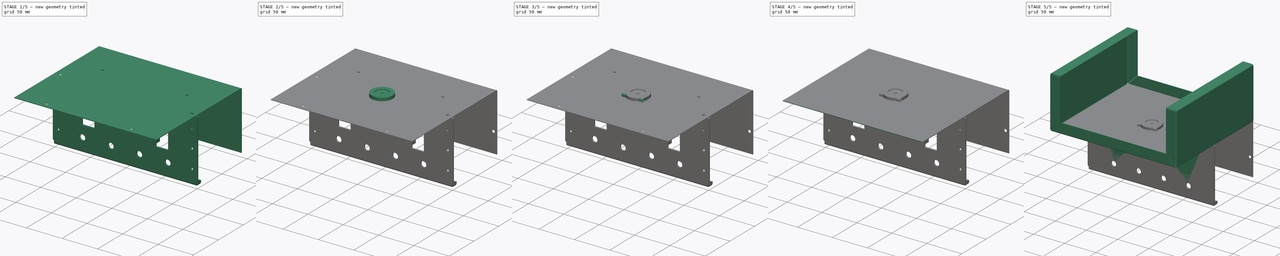
[diagram: build sequence overview — one tinted view per stage of 5, left to right]
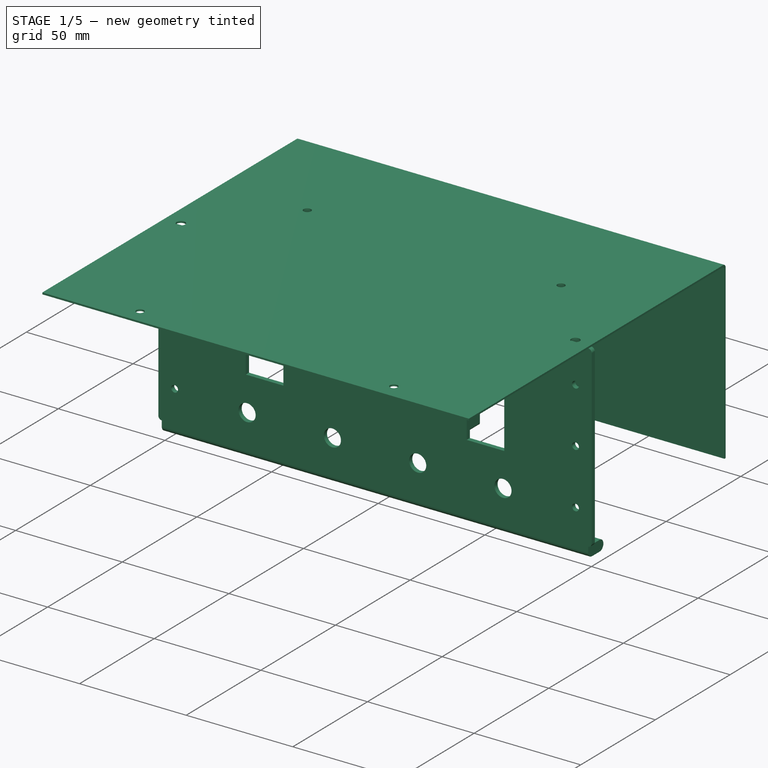
[diagram: stage 1 of 5 — iso view after this stage's code; geometry added in this stage tinted green]
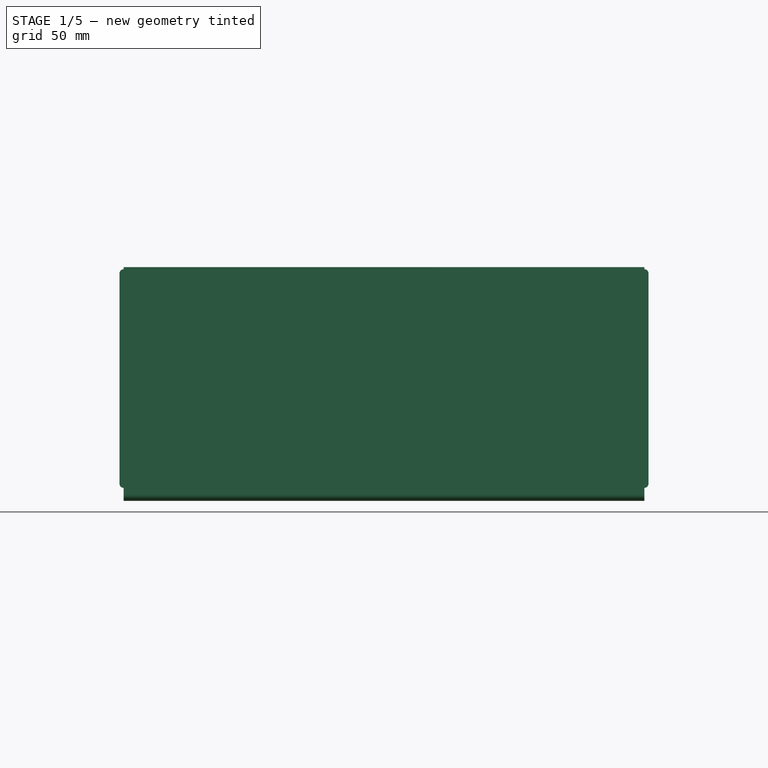
[diagram: stage 1 of 5 — front view after this stage's code; geometry added in this stage tinted green]
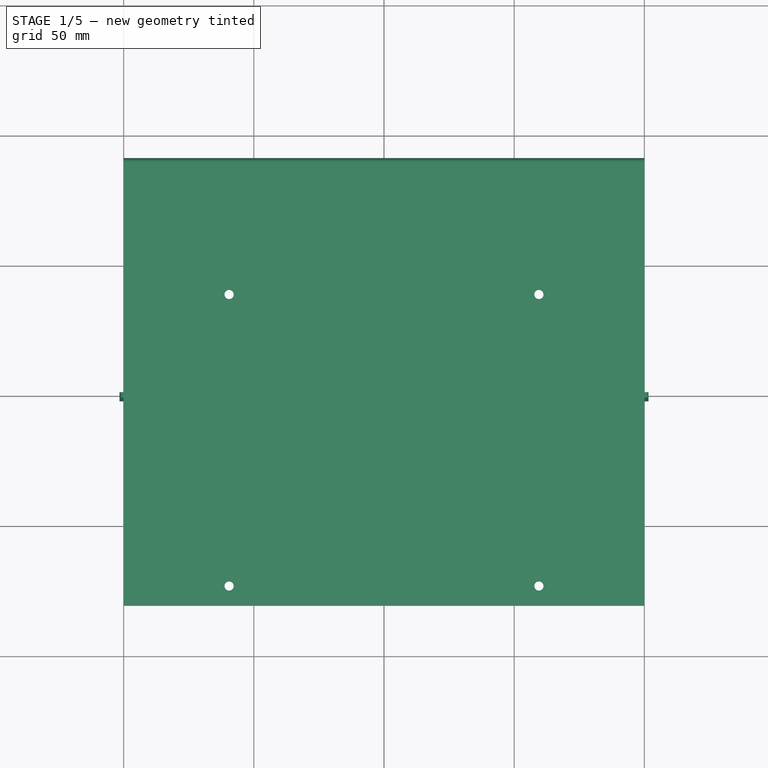
[diagram: stage 1 of 5 — top view after this stage's code; geometry added in this stage tinted green]
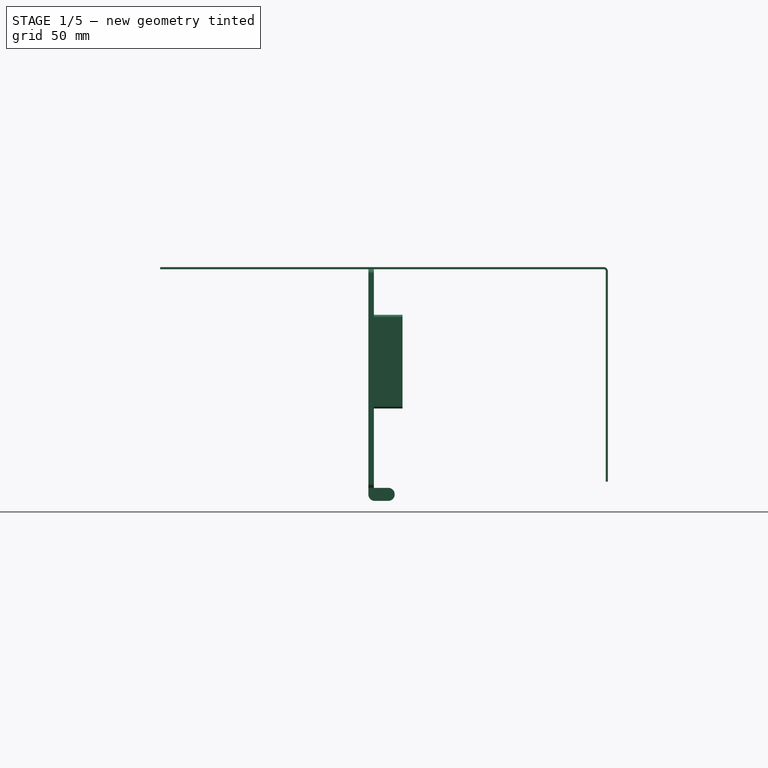
[diagram: stage 1 of 5 — right view after this stage's code; geometry added in this stage tinted green]
FCSTD DOCUMENT  (FreeCAD 1.0R39109 (Git))
Label: ADVtypeW_paramEnclosure
License: All rights reserved
LicenseURL: http://en.wikipedia.org/wiki/All_rights_reserved
objects: Sketcher::SketchObject×30, PartDesign::Pocket×18, PartDesign::Pad×12, PartDesign::Fillet×9, PartDesign::Body×9, PartDesign::Chamfer×4, PartDesign::FeaturePython×3, Spreadsheet::Sheet×1
note: 204 computed .brp shape members not serialized (recipe doc carries the construction recipe); baked Part::Feature solids carry a one-line shape summary decoded from their .brp

FEATURE [Sketcher::SketchObject] Sketch003
  ArcFitTolerance = 0
  AttachmentSupport = -> [XY_Plane008]
  FullyConstrained = true
  MakeInternals = false
  MapMode = 5
  expr: Constraints[10] = Spreadsheet.length / 2 + Spreadsheet.thickness
  expr: Constraints[13] = Spreadsheet.width / 2 - 7.5
  expr: Constraints[21] = Spreadsheet.width / 2 - 40.5
  expr: Constraints[22] = Spreadsheet.length / 2 - 50
  expr: Constraints[23] = Spreadsheet.width / 2 - 40.5
  expr: Constraints[25] = -Spreadsheet.length / 2 + 13
  expr: Constraints[7] = Spreadsheet.width
  expr: Constraints[8] = Spreadsheet.length - Spreadsheet.thickness * 2 - 3
  sketch-geometry (10):
    g0: LineSegment StartX=-100 StartY=88.3 StartZ=0 EndX=100 EndY=88.3 EndZ=0
    g1: LineSegment StartX=100 StartY=88.3 StartZ=0 EndX=100 EndY=-82.1 EndZ=0
    g2: LineSegment StartX=100 StartY=-82.1 StartZ=0 EndX=-100 EndY=-82.1 EndZ=0
    g3: LineSegment StartX=-100 StartY=-82.1 StartZ=0 EndX=-100 EndY=88.3 EndZ=0
    g4: Circle CenterX=92.5 CenterY=0 CenterZ=0 NormalX=0 NormalY=0 NormalZ=1 AngleXU=0 Radius=2
    g5: Circle CenterX=-92.5 CenterY=0 CenterZ=0 NormalX=0 NormalY=0 NormalZ=1 AngleXU=0 Radius=2
    g6: Circle CenterX=-59.5 CenterY=37.5 CenterZ=0 NormalX=0 NormalY=0 NormalZ=1 AngleXU=0 Radius=1.75
    g7: Circle CenterX=59.5 CenterY=37.5 CenterZ=0 NormalX=0 NormalY=0 NormalZ=1 AngleXU=0 Radius=1.75
    g8: Circle CenterX=-59.5 CenterY=-74.5 CenterZ=0 NormalX=0 NormalY=0 NormalZ=1 AngleXU=0 Radius=1.75
    g9: Circle CenterX=59.5 CenterY=-74.5 CenterZ=0 NormalX=0 NormalY=0 NormalZ=1 AngleXU=0 Radius=1.75
  constraints (26):
    c: Coincident(g0,g1)
    c: Coincident(g1,g2)
    c: Coincident(g2,g3)
    c: Coincident(g3,g0)
    c: Horizontal(g2)
    c: Vertical(g3)
    c: Symmetric(g0,g0,g-2)
    c: DistanceX(g0,g0) = 200
    c: DistanceY(g1,g1) = 170.4
    c: Vertical(g1)
    c: DistanceY(g0) = 88.3
    c: PointOnObject(g4,g-1)
    c: Diameter(g4) = 4
    c: DistanceX(g4) = 92.5
    c: Equal(g5,g4)
    c: Symmetric(g5,g4,g-2)
    c: Equal(g6,g9)
    c: Equal(g9,g8)
    c: Equal(g8,g7)
    c: Symmetric(g6,g7,g-2)
    c: Diameter(g6) = 3.5
    c: DistanceX(g6,g-1) = 59.5
    c: DistanceY(g6) = 37.5
    c: DistanceX(g9) = 59.5
    c: Symmetric(g8,g9,g-2)
    c: DistanceY(g8) = -74.5
FEATURE [PartDesign::Pad] Pad008
  Direction = (0,0,1)
  Length = 0.8
  Length2 = 10
  Profile = -> Sketch003
  ReferenceAxis = -> Sketch003 [N_Axis]
  Refine = true
  Suppressed = false
  Type = 0
  expr: Length = Spreadsheet.thickness
FEATURE [PartDesign::Body] Body004  label="PanelFrame"
  AllowCompound = false
  Group = -> [Sketch013,Pad005,Sketch014,Pad006,Sketch015,Pocket005,Fillet,Fillet001]
  Origin = -> Origin004
  Placement = pos=(0,-94.9,0) rot=(0,1,0;3.14159rad)
  Tip = -> Fillet001
  expr: .Placement.Base.y = -Spreadsheet.length / 2 - Spreadsheet.thickness * 3 - 5
FEATURE [Sketcher::SketchObject] Sketch006
  ArcFitTolerance = 0
  AttachmentSupport = -> [XZ_Plane002]
  FullyConstrained = true
  MakeInternals = false
  MapMode = 5
  Placement = pos=(0,0,0) rot=(1,0,0;1.5708rad)
  expr: Constraints[10] = Spreadsheet.height + Spreadsheet.thickness
  expr: Constraints[35] = (Spreadsheet.width - 97) * 0.2
  expr: Constraints[36] = Spreadsheet.height * 0.5
  expr: Constraints[40] = Spreadsheet.buthole
  expr: Constraints[43] = Spreadsheet.width / 5
  expr: Constraints[44] = Spreadsheet.width / 5
  expr: Constraints[45] = -Spreadsheet.height + 10
  expr: Constraints[46] = -Spreadsheet.height + 10
  expr: Constraints[7] = Spreadsheet.thickness * 2
  expr: Constraints[84] = Spreadsheet.width / 5
  expr: Constraints[85] = Spreadsheet.height * 0.15
  expr: Constraints[9] = Spreadsheet.width
  sketch-geometry (32):
    g0: LineSegment StartX=-100 StartY=0 StartZ=0 EndX=100 EndY=0 EndZ=0
    g1: LineSegment StartX=101.6 StartY=-1.6 StartZ=0 EndX=101.6 EndY=-82.4 EndZ=0
    g2: LineSegment StartX=-101.6 StartY=-1.6 StartZ=0 EndX=-101.6 EndY=-82.4 EndZ=0
    g3: ArcOfCircle CenterX=-100 CenterY=-1.6 CenterZ=0 NormalX=0 NormalY=0 NormalZ=1 AngleXU=0 Radius=1.6 StartAngle=1.5708 EndAngle=3.14159
    g4: ArcOfCircle CenterX=100 CenterY=-1.6 CenterZ=0 NormalX=0 NormalY=0 NormalZ=1 AngleXU=0 Radius=1.6 StartAngle=1e-16 EndAngle=1.5708
    g5: LineSegment StartX=-36 StartY=-28 StartZ=0 EndX=36 EndY=-28 EndZ=0
    g6: LineSegment StartX=36 StartY=-28 StartZ=0 EndX=36 EndY=-43 EndZ=0
    g7: LineSegment StartX=36 StartY=-43 StartZ=0 EndX=-36 EndY=-43 EndZ=0
    g8: LineSegment StartX=-36 StartY=-43 StartZ=0 EndX=-36 EndY=-28 EndZ=0
    g9: LineSegment StartX=-60.6 StartY=-14 StartZ=0 EndX=-60.6 EndY=-54 EndZ=0
    g10: LineSegment StartX=-60.6 StartY=-14 StartZ=0 EndX=-40 EndY=-14 EndZ=0
    g11: LineSegment StartX=-60.6 StartY=-54 StartZ=0 EndX=-43 EndY=-54 EndZ=0
    g12: LineSegment StartX=40 StartY=-14 StartZ=0 EndX=60.6 EndY=-14 EndZ=0
    g13: LineSegment StartX=60.6 StartY=-14 StartZ=0 EndX=60.6 EndY=-54 EndZ=0
    g14: LineSegment StartX=60.6 StartY=-54 StartZ=0 EndX=43 EndY=-54 EndZ=0
    g15: Circle CenterX=-20 CenterY=-70 CenterZ=0 NormalX=0 NormalY=0 NormalZ=1 AngleXU=0 Radius=4
    g16: Circle CenterX=20 CenterY=-70 CenterZ=0 NormalX=0 NormalY=0 NormalZ=1 AngleXU=0 Radius=4
    g17: Circle CenterX=60 CenterY=-70 CenterZ=0 NormalX=0 NormalY=0 NormalZ=1 AngleXU=0 Radius=4
    g18: Circle CenterX=-60 CenterY=-70 CenterZ=0 NormalX=0 NormalY=0 NormalZ=1 AngleXU=0 Radius=4
    g19: LineSegment StartX=-30 StartY=-14 StartZ=0 EndX=30 EndY=-14 EndZ=0
    g20: LineSegment StartX=30 StartY=-14 StartZ=0 EndX=30 EndY=-22 EndZ=0
    g21: LineSegment StartX=30 StartY=-22 StartZ=0 EndX=-30 EndY=-22 EndZ=0
    g22: LineSegment StartX=-30 StartY=-22 StartZ=0 EndX=-30 EndY=-14 EndZ=0
    g23: LineSegment StartX=-100 StartY=-84 StartZ=0 EndX=-100 EndY=-89 EndZ=0
    g24: LineSegment StartX=-100 StartY=-89 StartZ=0 EndX=100 EndY=-89 EndZ=0
    g25: LineSegment StartX=100 StartY=-89 StartZ=0 EndX=100 EndY=-84 EndZ=0
    g26: LineSegment StartX=43 StartY=-54 StartZ=0 EndX=43 EndY=-42 EndZ=0
    g27: LineSegment StartX=40 StartY=-14 StartZ=0 EndX=43 EndY=-42 EndZ=0
    g28: LineSegment StartX=-43 StartY=-54 StartZ=0 EndX=-43 EndY=-42 EndZ=0
    g29: LineSegment StartX=-40 StartY=-14 StartZ=0 EndX=-43 EndY=-42 EndZ=0
    g30: ArcOfCircle CenterX=-100 CenterY=-82.4 CenterZ=0 NormalX=0 NormalY=0 NormalZ=1 AngleXU=0 Radius=1.6 StartAngle=3.14159 EndAngle=4.71239
    g31: ArcOfCircle CenterX=100 CenterY=-82.4 CenterZ=0 NormalX=0 NormalY=0 NormalZ=1 AngleXU=0 Radius=1.6 StartAngle=4.71239 EndAngle=6.28319
  constraints (87):
    c: Vertical(g1)
    c: Vertical(g2)
    c: Tangent(g4,g0) = 1.5708
    c: Tangent(g4,g1) = 1.5708
    c: Tangent(g3,g2) = -1.5708
    c: Tangent(g3,g0) = 1.5708
    c: Equal(g3,g4)
    c: Radius(g3) = 1.6
    c: Symmetric(g0,g0,g-2)
    c: DistanceX(g0,g0) = 200
    c: DistanceY(g2,g2) = 80.8
    c: Coincident(g5,g6)
    c: Coincident(g6,g7)
    c: Coincident(g7,g8)
    c: Coincident(g8,g5)
    c: Horizontal(g7)
    c: Vertical(g6)
    c: Vertical(g8)
    c: DistanceX(g5,g5) = 72
    c: DistanceY(g8,g8) = 15
    c: Symmetric(g5,g5,g-2)
    c: DistanceY(g5) = -28
    c: Vertical(g9)
    c: Coincident(g10,g9)
    c: Horizontal(g10)
    c: Coincident(g11,g9)
    c: Horizontal(g11)
    c: Horizontal(g12)
    c: Coincident(g13,g12)
    c: Vertical(g13)
    c: Coincident(g14,g13)
    c: Horizontal(g14)
    c: Equal(g10,g12)
    c: Equal(g9,g13)
    c: DistanceY(g9) = -14
    c: DistanceX(g10,g10) = 20.6
    c: DistanceY(g13,g13) = 40
    c: Equal(g18,g15)
    c: Equal(g15,g16)
    c: Equal(g16,g17)
    c: Diameter(g18) = 8
    c: Symmetric(g15,g16,g-2)
    c: Symmetric(g18,g17,g-2)
    c: DistanceX(g18,g15) = 40
    c: DistanceX(g15,g16) = 40
    c: DistanceY(g18) = -70
    c: DistanceY(g15) = -70
    c: Coincident(g19,g20)
    c: Coincident(g20,g21)
    c: Coincident(g21,g22)
    c: Coincident(g22,g19)
    c: Horizontal(g21)
    c: Vertical(g20)
    c: Vertical(g22)
    c: DistanceX(g19,g19) = 60
    c: Symmetric(g19,g19,g-2)
    c: DistanceY(g20,g20) = 8
    c: DistanceY(g19) = -14
    c: Coincident(g23,g24)
    c: Coincident(g24,g25)
    c: Vertical(g25)
    c: Vertical(g23)
    c: DistanceY(g23,g23) = 5
    c: Equal(g1,g2)
    c: Symmetric(g23,g24,g-2)
    c: PointOnObject(g0,g-1)
    c: Coincident(g26,g14)
    c: Vertical(g26)
    c: Coincident(g27,g12)
    c: Coincident(g27,g26)
    c: Coincident(g28,g11)
    c: Vertical(g28)
    c: Coincident(g29,g10)
    c: Coincident(g29,g28)
    c: Coincident(g30,g23)
    c: Coincident(g31,g25)
    c: Tangent(g30,g2) = -1.5708
    c: Tangent(g31,g1) = 1.5708
    c: Equal(g23,g25)
    c: Equal(g31,g4)
    c: Equal(g24,g0)
    c: Equal(g28,g26)
    c: Equal(g29,g27)
    c: Symmetric(g10,g12,g-2)
    c: DistanceX(g10,g-1) = 40
    c: DistanceY(g28,g28) = 12
    c: DistanceX(g11,g14) = 86
FEATURE [PartDesign::Pad] Pad002
  Direction = (0,-1,2e-16)
  Length = 2.1
  Length2 = 10
  Placement = pos=(0,0,0) rot=(1,0,0;1.5708rad)
  Profile = -> Sketch006
  ReferenceAxis = -> Sketch006 [N_Axis]
  Suppressed = false
  Type = 0
FEATURE [Sketcher::SketchObject] Sketch010
  ArcFitTolerance = 0
  FullyConstrained = true
  MakeInternals = false
  MapMode = 5
  Placement = pos=(0,-2.1,0) rot=(1,0,0;1.5708rad)
  expr: Constraints[10] = Spreadsheet.width - 32
  expr: Constraints[11] = Spreadsheet.height - 28
  expr: Constraints[12] = Spreadsheet.width - 12
  expr: Constraints[13] = -17 mm
  expr: Constraints[14] = Spreadsheet.width - 12
  expr: Constraints[17] = -7
  expr: Constraints[21] = Spreadsheet.width - 12
  expr: Constraints[22] = -Spreadsheet.height / 2 - 3
  expr: Constraints[5] = Spreadsheet.hole
  expr: Constraints[9] = -Spreadsheet.thickness - 6
  sketch-geometry (9):
    g0: Circle CenterX=-84 CenterY=-6.8 CenterZ=0 NormalX=0 NormalY=0 NormalZ=1 AngleXU=0 Radius=1.6
    g1: Circle CenterX=84 CenterY=-6.8 CenterZ=0 NormalX=0 NormalY=0 NormalZ=1 AngleXU=0 Radius=1.6
    g2: Circle CenterX=94 CenterY=-17 CenterZ=0 NormalX=0 NormalY=0 NormalZ=1 AngleXU=0 Radius=1.6
    g3: Circle CenterX=94 CenterY=-69 CenterZ=0 NormalX=0 NormalY=0 NormalZ=1 AngleXU=0 Radius=1.6
    g4: Circle CenterX=-94 CenterY=-69 CenterZ=0 NormalX=0 NormalY=0 NormalZ=1 AngleXU=0 Radius=1.6
    g5: Circle CenterX=-94 CenterY=-17 CenterZ=0 NormalX=0 NormalY=0 NormalZ=1 AngleXU=0 Radius=1.6
    g6: Circle CenterX=0 CenterY=-7 CenterZ=0 NormalX=0 NormalY=0 NormalZ=1 AngleXU=0 Radius=1.6
    g7: Circle CenterX=-94 CenterY=-43 CenterZ=0 NormalX=0 NormalY=0 NormalZ=1 AngleXU=0 Radius=1.6
    g8: Circle CenterX=94 CenterY=-43 CenterZ=0 NormalX=0 NormalY=0 NormalZ=1 AngleXU=0 Radius=1.6
  constraints (23):
    c: Equal(g0,g1)
    c: Equal(g1,g2)
    c: Equal(g2,g3)
    c: Equal(g3,g4)
    c: Equal(g4,g5)
    c: Diameter(g0) = 3.2
    c: Symmetric(g0,g1,g-2)
    c: Symmetric(g5,g2,g-2)
    c: Symmetric(g4,g3,g-2)
    c: DistanceY(g0) = -6.8
    c: DistanceX(g0,g1) = 168
    c: DistanceY(g4,g5) = 52
    c: DistanceX(g5,g2) = 188
    c: DistanceY(g5) = -17
    c: DistanceX(g4,g3) = 188
    c: PointOnObject(g6,g-2)
    c: Equal(g5,g6)
    c: DistanceY(g6) = -7
    c: Equal(g6,g8)
    c: Equal(g8,g7)
    c: Symmetric(g7,g8,g-2)
    c: DistanceX(g7,g8) = 188
    c: DistanceY(g7) = -43
FEATURE [PartDesign::Pocket] Pocket004
  BaseFeature = -> Pad002
  Direction = (0,1,0)
  Length = 5
  Length2 = 5
  Placement = pos=(0,0,0) rot=(1,0,0;1.5708rad)
  Profile = -> Sketch010
  ReferenceAxis = -> Sketch010 [N_Axis]
  Suppressed = false
  Type = 0
FEATURE [Sketcher::SketchObject] Sketch012
  ArcFitTolerance = 0
  AttachmentOffset = pos=(0,0,0) rot=(0,0,-1;1.5708rad)
  FullyConstrained = true
  MakeInternals = false
  MapMode = 5
  Placement = pos=(0,0,0) rot=(0.57735,0.57735,0.57735;4.18879rad)
  expr: Constraints[60] = -20
  sketch-geometry (24):
    g0: LineSegment StartX=-52.5 StartY=40 StartZ=0 EndX=-18.5 EndY=40 EndZ=0
    g1: ArcOfCircle CenterX=-52.5 CenterY=39 CenterZ=0 NormalX=0 NormalY=0 NormalZ=1 AngleXU=0 Radius=1 StartAngle=1.5708 EndAngle=3.14159
    g2: ArcOfCircle CenterX=-18.5 CenterY=39 CenterZ=0 NormalX=0 NormalY=0 NormalZ=1 AngleXU=0 Radius=1 StartAngle=-3.6e-15 EndAngle=1.5708
    g3: LineSegment StartX=-53.5 StartY=39 StartZ=0 EndX=-53.5 EndY=36.5 EndZ=0
    g4: LineSegment StartX=-17.5 StartY=39 StartZ=0 EndX=-17.5 EndY=36.5 EndZ=0
    g5: ArcOfCircle CenterX=-51.05 CenterY=36.5 CenterZ=0 NormalX=0 NormalY=0 NormalZ=1 AngleXU=0 Radius=2.45 StartAngle=3.14159 EndAngle=5.49779
    g6: ArcOfCircle CenterX=-19.95 CenterY=36.5 CenterZ=0 NormalX=0 NormalY=0 NormalZ=1 AngleXU=0 Radius=2.45 StartAngle=3.92699 EndAngle=6.28319
    g7: LineSegment StartX=-49.3176 StartY=34.7676 StartZ=0 EndX=-48 EndY=36.0852 EndZ=0
    g8: LineSegment StartX=-21.6824 StartY=34.7676 StartZ=0 EndX=-23 EndY=36.0852 EndZ=0
    g9: LineSegment StartX=-48 StartY=36.0852 StartZ=0 EndX=-23 EndY=36.0852 EndZ=0
    g10: LineSegment StartX=-52.5 StartY=-40 StartZ=0 EndX=-18.5 EndY=-40 EndZ=0
    g11: ArcOfCircle CenterX=-52.5 CenterY=-39 CenterZ=0 NormalX=0 NormalY=0 NormalZ=1 AngleXU=0 Radius=1 StartAngle=3.14159 EndAngle=4.71239
    g12: ArcOfCircle CenterX=-18.5 CenterY=-39 CenterZ=0 NormalX=0 NormalY=0 NormalZ=1 AngleXU=0 Radius=1 StartAngle=4.71239 EndAngle=6.28319
    g13: LineSegment StartX=-53.5 StartY=-39 StartZ=0 EndX=-53.5 EndY=-36.5 EndZ=0
    g14: LineSegment StartX=-17.5 StartY=-39 StartZ=0 EndX=-17.5 EndY=-36.5 EndZ=0
    g15: ArcOfCircle CenterX=-51.05 CenterY=-36.5 CenterZ=0 NormalX=0 NormalY=0 NormalZ=1 AngleXU=0 Radius=2.45 StartAngle=0.785398 EndAngle=3.14159
    g16: LineSegment StartX=-49.3176 StartY=-34.7676 StartZ=0 EndX=-48 EndY=-36.0852 EndZ=0
    g17: LineSegment StartX=-48 StartY=-36.0852 StartZ=0 EndX=-23 EndY=-36.0852 EndZ=0
    g18: Circle CenterX=-51 CenterY=-37.5 CenterZ=0 NormalX=0 NormalY=0 NormalZ=1 AngleXU=0 Radius=1.05
    g19: Circle CenterX=-20 CenterY=-37.5 CenterZ=0 NormalX=0 NormalY=0 NormalZ=1 AngleXU=0 Radius=1.05
    g20: Circle CenterX=-20 CenterY=37.5 CenterZ=0 NormalX=0 NormalY=0 NormalZ=1 AngleXU=0 Radius=1.05
    g21: Circle CenterX=-51 CenterY=37.5 CenterZ=0 NormalX=0 NormalY=0 NormalZ=1 AngleXU=0 Radius=1.05
    g22: LineSegment StartX=-23 StartY=-36.0852 StartZ=0 EndX=-21.6824 EndY=-34.7676 EndZ=0
    g23: ArcOfCircle CenterX=-19.95 CenterY=-36.5 CenterZ=0 NormalX=0 NormalY=0 NormalZ=1 AngleXU=0 Radius=2.45 StartAngle=6e-16 EndAngle=2.35619
  constraints (61):
    c: Horizontal(g0)
    c: Vertical(g3)
    c: Vertical(g4)
    c: Tangent(g5,g3) = -1.5708
    c: Tangent(g3,g1) = -1.5708
    c: Tangent(g1,g0) = 1.5708
    c: Tangent(g2,g0) = 1.5708
    c: Tangent(g4,g2) = 1.5708
    c: Tangent(g6,g4) = 1.5708
    c: Horizontal(g9)
    c: Tangent(g8,g6) = 1.5708
    c: Tangent(g7,g5) = -1.5708
    c: Equal(g1,g2)
    c: Equal(g7,g8)
    c: Equal(g6,g5)
    c: Angle(g7) = 0.785398
    c: Coincident(g9,g7)
    c: Coincident(g8,g9)
    c: Radius(g1) = 1
    c: DistanceX(g0,g0) = 34
    c: DistanceY(g3,g3) = 2.5
    c: DistanceX(g9,g9) = 25
    c: Radius(g5) = 2.45
    c: Horizontal(g10)
    c: Vertical(g13)
    c: Vertical(g14)
    c: Coincident(g17,g16)
    c: Horizontal(g17)
    c: Tangent(g12,g10) = -1.5708
    c: Tangent(g14,g12) = -1.5708
    c: Tangent(g11,g10) = -1.5708
    c: Tangent(g13,g11) = 1.5708
    c: Tangent(g15,g13) = 1.5708
    c: Tangent(g16,g15) = 1.5708
    c: Equal(g7,g16)
    c: Equal(g10,g0)
    c: Equal(g3,g13)
    c: Equal(g4,g14)
    c: Equal(g1,g11)
    c: Equal(g2,g12)
    c: Angle(g16) = -0.785398
    c: DistanceY(g10,g0) = 80
    c: Symmetric(g3,g13,g-1)
    c: Diameter(g18) = 2.1
    c: Symmetric(g21,g18,g-1)
    c: Symmetric(g20,g19,g-1)
    c: Equal(g18,g19)
    c: Equal(g19,g20)
    c: Equal(g20,g21)
    c: DistanceX(g21,g20) = 31
    c: DistanceY(g19,g20) = 75
    c: DistanceY(g18,g21) = 75
    c: Equal(g13,g14)
    c: DistanceX(g20,g6) = 0.05
    c: Coincident(g22,g17)
    c: Tangent(g23,g22) = 1.5708
    c: Tangent(g23,g14) = -1.5708
    c: Equal(g15,g23)
    c: Equal(g22,g16)
    c: Equal(g6,g23)
    c: DistanceX(g20) = -20
FEATURE [PartDesign::Pad] Pad004
  BaseFeature = -> Pocket004
  Direction = (-1e-16,1,-9e-16)
  Length = 11
  Length2 = 10
  Placement = pos=(0,0,0) rot=(1,0,0;1.5708rad)
  Profile = -> Sketch012
  ReferenceAxis = -> Sketch012 [N_Axis]
  Suppressed = false
  Type = 0
FEATURE [PartDesign::FeaturePython] Bend005  # WARN: FeaturePython — macro-defined, semantics opaque (R4)
  AngleFaceRefMode = false
  AutoMiter = true
  BaseFeature = -> Pad008
  BendType = 0
  LengthList = [80.8]
  LengthSpec = 0
  NonperforationMaxLength = 5
  OffsetFaceRefMode = false
  OffsetType = 1
  OffsetTypeOffset = 0
  Perforate = false
  PerforationAngle = 0
  PerforationInitialLength = 5
  PerforationMaxLength = 5
  RelativeAngleToRef = 0
  ReliefFactor = 0.7
  SupplAngleRef = false
  Suppressed = false
  UseReliefFactor = false
  angle = 90
  baseObject = -> Pad008 [Edge3]
  bendAList = [90]
  extend1 = 0
  extend2 = 0
  gap1 = 0
  gap2 = 0
  invert = false
  kfactor = 0.5
  length = 80.8
  maxExtendDist = 5
  minGap = 0.2
  minReliefGap = 1
  miterangle1 = 0
  miterangle2 = 0
  offset = 0
  radius = 0.8
  reliefType = 0
  reliefd = 1
  reliefw = 0.8
  sketchflip = false
  sketchinvert = false
  unfold = false
  expr: length = Spreadsheet.height + Spreadsheet.thickness
  expr: radius = Spreadsheet.thickness
FEATURE [PartDesign::Body] Body  label="MetalTop"
  AllowCompound = false
  Group = -> [Sketch,Pad,Bend,Bend006]
  Origin = -> Origin
  Tip = -> Bend006
FEATURE [Sketcher::SketchObject] Sketch018
  ArcFitTolerance = 1e-06
  AttachmentSupport = -> [Pad004]
  FullyConstrained = true
  MakeInternals = false
  MapMode = 5
  Placement = pos=(0,-8.8e-15,0) rot=(-1,0,0;1.5708rad)
  expr: Constraints[10] = Spreadsheet.height + Spreadsheet.thickness * 5
  expr: Constraints[9] = Spreadsheet.width
  sketch-geometry (4):
    g0: LineSegment StartX=-100 StartY=89 StartZ=0 EndX=-100 EndY=84 EndZ=0
    g1: LineSegment StartX=-100 StartY=84 StartZ=0 EndX=100 EndY=84 EndZ=0
    g2: LineSegment StartX=100 StartY=84 StartZ=0 EndX=100 EndY=89 EndZ=0
    g3: LineSegment StartX=100 StartY=89 StartZ=0 EndX=-100 EndY=89 EndZ=0
  constraints (11):
    c: Coincident(g0,g1)
    c: Coincident(g1,g2)
    c: Coincident(g2,g3)
    c: Coincident(g3,g0)
    c: Vertical(g0)
    c: Vertical(g2)
    c: Horizontal(g1)
    c: Symmetric(g0,g2,g-2)
    c: DistanceY(g0,g0) = 5
    c: DistanceX(g3,g3) = 200
    c: DistanceY(g0) = 84
FEATURE [PartDesign::Pad] Pad009
  BaseFeature = -> Pad004
  Direction = (0,1,2e-16)
  Length = 8
  Length2 = 10
  Placement = pos=(0,0,0) rot=(1,0,0;1.5708rad)
  Profile = -> Sketch018
  ReferenceAxis = -> Sketch018 [N_Axis]
  Refine = true
  Suppressed = false
  Type = 0
FEATURE [Sketcher::SketchObject] Sketch019
  ArcFitTolerance = 1e-06
  AttachmentSupport = -> [Pad009]
  FullyConstrained = true
  MakeInternals = false
  MapMode = 5
  Placement = pos=(0,-1.034e-13,-89) rot=(1,0,0;3.14159rad)
  expr: Constraints[20] = Spreadsheet.width - 81
  sketch-geometry (8):
    g0: LineSegment StartX=-75 StartY=-1 StartZ=0 EndX=-75 EndY=-11 EndZ=0
    g1: LineSegment StartX=44 StartY=-11 StartZ=0 EndX=44 EndY=-1 EndZ=0
    g2: LineSegment StartX=-44 StartY=-11 StartZ=0 EndX=-44 EndY=-1 EndZ=0
    g3: LineSegment StartX=75 StartY=-11 StartZ=0 EndX=75 EndY=-1 EndZ=0
    g4: LineSegment StartX=-75 StartY=-1 StartZ=0 EndX=-44 EndY=-1 EndZ=0
    g5: LineSegment StartX=-44 StartY=-11 StartZ=0 EndX=-75 EndY=-11 EndZ=0
    g6: LineSegment StartX=75 StartY=-1 StartZ=0 EndX=44 EndY=-1 EndZ=0
    g7: LineSegment StartX=44 StartY=-11 StartZ=0 EndX=75 EndY=-11 EndZ=0
  constraints (23):
    c: Vertical(g0)
    c: Vertical(g1)
    c: DistanceY(g0) = -1
    c: DistanceY(g0,g0) = 10
    c: Vertical(g2)
    c: Vertical(g3)
    c: Equal(g0,g3)
    c: Coincident(g4,g0)
    c: Coincident(g4,g2)
    c: Horizontal(g4)
    c: Coincident(g5,g2)
    c: Coincident(g5,g0)
    c: Horizontal(g5)
    c: Coincident(g6,g3)
    c: Coincident(g6,g1)
    c: Horizontal(g6)
    c: Coincident(g7,g1)
    c: Coincident(g7,g3)
    c: Horizontal(g7)
    c: Equal(g4,g6)
    c: DistanceX(g0,g1) = 119
    c: DistanceX(g4,g4) = 31
    c: Symmetric(g2,g1,g-2)
FEATURE [PartDesign::Pocket] Pocket
  BaseFeature = -> Pad009
  Direction = (0,1.2e-15,1)
  Length = 5
  Length2 = 5
  Placement = pos=(0,0,0) rot=(1,0,0;1.5708rad)
  Profile = -> Sketch019
  ReferenceAxis = -> Sketch019 [N_Axis]
  Refine = true
  Suppressed = false
  Type = 0
FEATURE [Sketcher::SketchObject] Sketch020
  ArcFitTolerance = 1e-06
  AttachmentSupport = -> [Pocket]
  FullyConstrained = true
  MakeInternals = false
  MapMode = 5
  Placement = pos=(-100,0,0) rot=(0.707107,0,-0.707107;3.14159rad)
  expr: Constraints[0] = Spreadsheet.height + Spreadsheet.thickness * 5 + 2.5
  sketch-geometry (1):
    g0: Circle CenterX=86.5 CenterY=-5.5 CenterZ=0 NormalX=0 NormalY=0 NormalZ=1 AngleXU=0 Radius=1.5
  constraints (3):
    c: DistanceX(g0) = 86.5
    c: Diameter(g0) = 3
    c: DistanceY(g0) = -5.5
FEATURE [PartDesign::Pocket] Pocket007
  BaseFeature = -> Pocket
  Direction = (1,0,2e-16)
  Length = 195
  Length2 = 5
  Placement = pos=(0,0,0) rot=(1,0,0;1.5708rad)
  Profile = -> Sketch020
  ReferenceAxis = -> Sketch020 [N_Axis]
  Refine = true
  Suppressed = false
  Type = 0
  expr: Length = Spreadsheet.width - 5
FEATURE [PartDesign::Body] Body001  label="MetalBottom"
  AllowCompound = false
  Group = -> [Sketch003,Pad008,Bend005,Sketch038,Pocket021]
  Origin = -> Origin001
  Placement = pos=(0,0,83.2) rot=(0,0,1;0rad)
  Tip = -> Pocket021
  expr: .Placement.Base.z = Spreadsheet.height + Spreadsheet.thickness * 4
FEATURE [PartDesign::Fillet] Fillet009
  Base = -> Pocket007 [Edge195,Edge108,Edge72,Edge199,Edge112,Edge203,Edge116]
  BaseFeature = -> Pocket007
  Placement = pos=(0,0,0) rot=(1,0,0;1.5708rad)
  Radius = 2.45
  Refine = true
  SupportTransform = false
  Suppressed = false
  UseAllEdges = false
FEATURE [PartDesign::Body] Body002  label="PanelBack"
  AllowCompound = false
  Group = -> [Sketch006,Pad002,Sketch010,Pocket004,Sketch012,Pad004,Sketch018,Pad009,Sketch019,Sketch020,Pocket,Pocket007,Fillet009]
  Origin = -> Origin002
  Placement = pos=(0,-89.1,0) rot=(0,1,0;3.14159rad)
  Tip = -> Fillet009
  expr: .Placement.Base.y = -Spreadsheet.length / 2 - Spreadsheet.thickness * 2
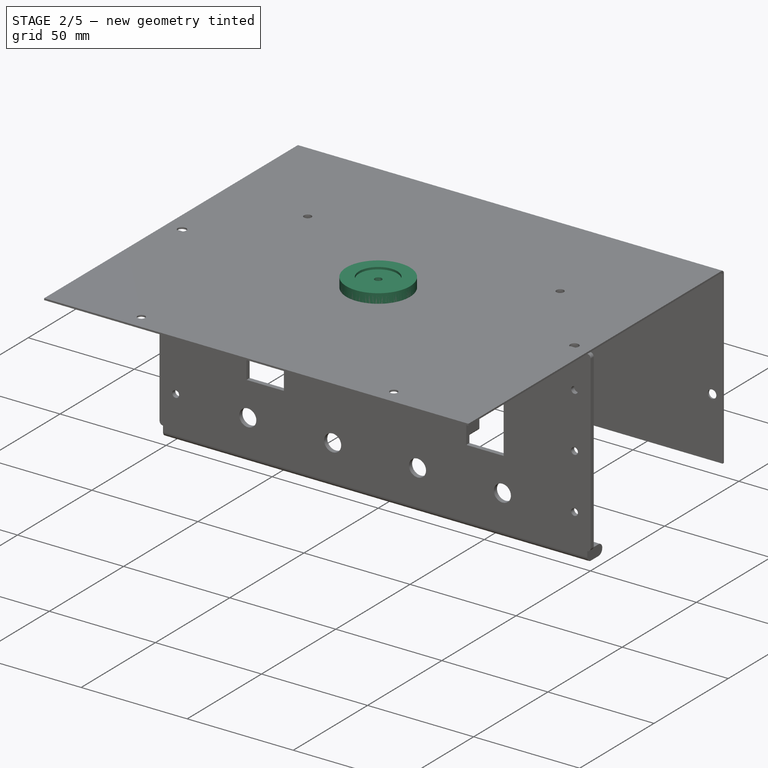
[diagram: stage 2 of 5 — iso view after this stage's code; geometry added in this stage tinted green]
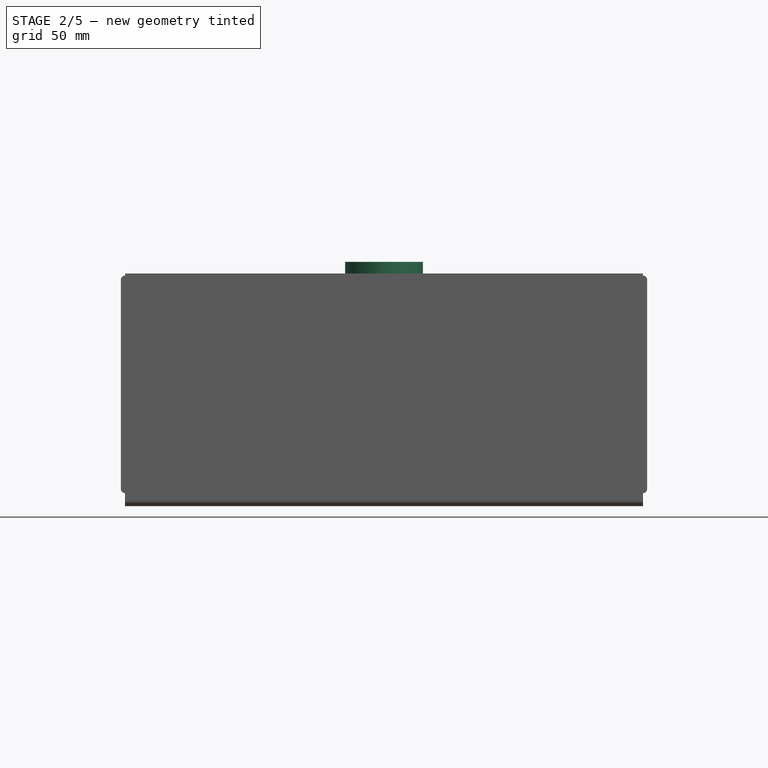
[diagram: stage 2 of 5 — front view after this stage's code; geometry added in this stage tinted green]
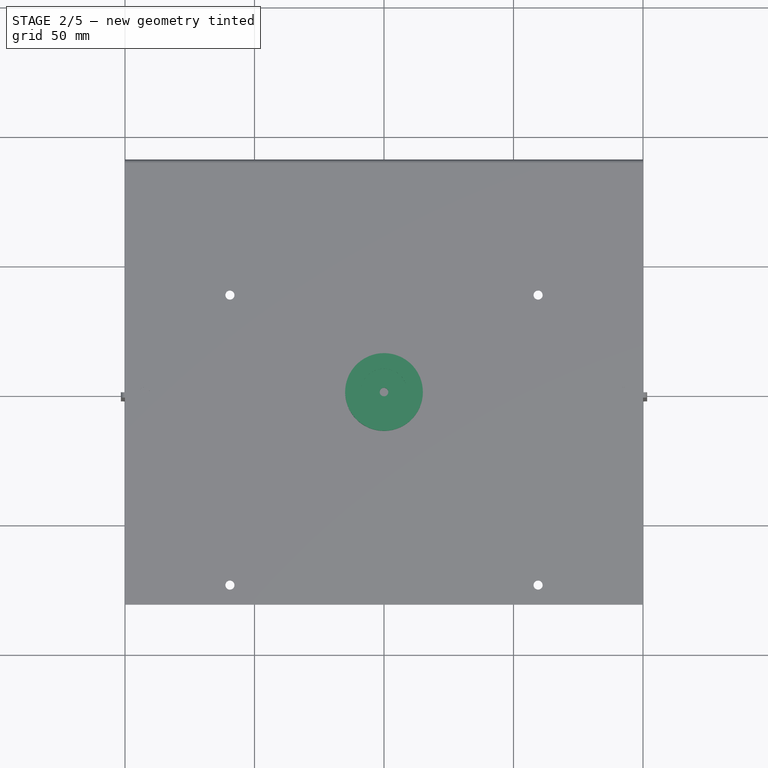
[diagram: stage 2 of 5 — top view after this stage's code; geometry added in this stage tinted green]
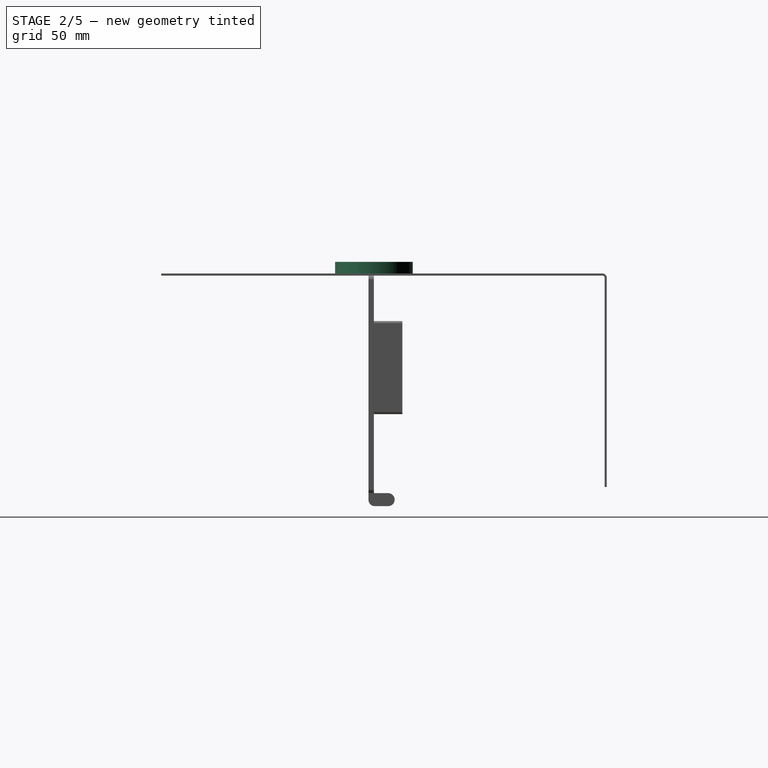
[diagram: stage 2 of 5 — right view after this stage's code; geometry added in this stage tinted green]
FEATURE [PartDesign::Body] Body007  label="Pad2"
  AllowCompound = false
  Group = -> [Sketch026,Pad011,Sketch027,Pocket012,Fillet005,Fillet006,Sketch028,Pocket013,Sketch029,Pocket014,Sketch030,Pocket015,Chamfer001]
  Origin = -> Origin008
  Placement = pos=(-59.5,-74.6,85) rot=(0,0,1;0rad)
  Tip = -> Chamfer001
  expr: .Placement.Base.x = -Spreadsheet.width / 2 + 40.5
  expr: .Placement.Base.y = -Spreadsheet.length / 2 + Spreadsheet.thickness + 12.1
  expr: .Placement.Base.z = Spreadsheet.height + 5
FEATURE [Sketcher::SketchObject] Sketch031
  ArcFitTolerance = 1e-06
  FullyConstrained = true
  MakeInternals = false
  sketch-geometry (1):
    g0: Circle CenterX=0 CenterY=0 CenterZ=0 NormalX=0 NormalY=0 NormalZ=1 AngleXU=0 Radius=15
  constraints (2):
    c: Coincident(g0,g-1)
    c: Radius(g0) = 15
FEATURE [PartDesign::Pad] Pad012  label="Pad014"
  Direction = (0,0,1)
  Length = 5.3
  Length2 = 10
  Profile = -> Sketch031
  ReferenceAxis = -> Sketch031 [N_Axis]
  Refine = true
  Suppressed = false
  Type = 0
FEATURE [Sketcher::SketchObject] Sketch033
  ArcFitTolerance = 1e-06
  FullyConstrained = true
  MakeInternals = false
  MapMode = 5
  Placement = pos=(0,0,5.3) rot=(0,0,1;0rad)
  sketch-geometry (1):
    g0: Circle CenterX=0 CenterY=0 CenterZ=0 NormalX=0 NormalY=0 NormalZ=1 AngleXU=0 Radius=9
  constraints (2):
    c: Diameter(g0) = 18
    c: Coincident(g0,g-1)
FEATURE [PartDesign::Pocket] Pocket017
  BaseFeature = -> Pad012
  Direction = (0,0,-1)
  Length = 1
  Length2 = 5
  Profile = -> Sketch033
  ReferenceAxis = -> Sketch033 [N_Axis]
  Refine = true
  Suppressed = false
  Type = 0
FEATURE [Sketcher::SketchObject] Sketch034
  ArcFitTolerance = 1e-06
  AttachmentSupport = -> [Pocket017]
  FullyConstrained = true
  MakeInternals = false
  MapMode = 5
  Placement = pos=(0,0,4.3) rot=(0,0,1;0rad)
  sketch-geometry (1):
    g0: Circle CenterX=0 CenterY=0 CenterZ=0 NormalX=0 NormalY=0 NormalZ=1 AngleXU=0 Radius=1.65
  constraints (2):
    c: Diameter(g0) = 3.3
    c: Coincident(g0,g-1)
FEATURE [PartDesign::Pocket] Pocket018
  BaseFeature = -> Pocket017
  Direction = (0,0,-1)
  Length = 5
  Length2 = 5
  Profile = -> Sketch034
  ReferenceAxis = -> Sketch034 [N_Axis]
  Refine = true
  Suppressed = false
  Type = 0
FEATURE [PartDesign::Body] Body008  label="Pad3"
  AllowCompound = false
  Group = -> [Sketch031,Pad012,Sketch033,Pocket017,Sketch034,Pocket018,Fillet007,Chamfer002]
  Origin = -> Origin009
  Placement = pos=(-59.5,37.5,85) rot=(0,0,1;0rad)
  Tip = -> Chamfer002
  expr: .Placement.Base.x = -Spreadsheet.width / 2 + 40.5
  expr: .Placement.Base.y = Spreadsheet.length / 2 - 50
  expr: .Placement.Base.z = Spreadsheet.height + 5
FEATURE [Sketcher::SketchObject] Sketch035
  ArcFitTolerance = 1e-06
  FullyConstrained = true
  MakeInternals = false
  sketch-geometry (1):
    g0: Circle CenterX=0 CenterY=0 CenterZ=0 NormalX=0 NormalY=0 NormalZ=1 AngleXU=0 Radius=15
  constraints (2):
    c: Coincident(g0,g-1)
    c: Radius(g0) = 15
FEATURE [PartDesign::Pad] Pad013
  Direction = (0,0,1)
  Length = 5.3
  Length2 = 10
  Profile = -> Sketch035
  ReferenceAxis = -> Sketch035 [N_Axis]
  Refine = true
  Suppressed = false
  Type = 0
FEATURE [Sketcher::SketchObject] Sketch036
  ArcFitTolerance = 1e-06
  FullyConstrained = true
  MakeInternals = false
  MapMode = 5
  Placement = pos=(0,0,5.3) rot=(0,0,1;0rad)
  sketch-geometry (1):
    g0: Circle CenterX=0 CenterY=0 CenterZ=0 NormalX=0 NormalY=0 NormalZ=1 AngleXU=0 Radius=9
  constraints (2):
    c: Diameter(g0) = 18
    c: Coincident(g0,g-1)
FEATURE [PartDesign::Pocket] Pocket019
  BaseFeature = -> Pad013
  Direction = (0,0,-1)
  Length = 1
  Length2 = 5
  Profile = -> Sketch036
  ReferenceAxis = -> Sketch036 [N_Axis]
  Refine = true
  Suppressed = false
  Type = 0
FEATURE [Sketcher::SketchObject] Sketch037
  ArcFitTolerance = 1e-06
  AttachmentSupport = -> [Pocket019]
  FullyConstrained = true
  MakeInternals = false
  MapMode = 5
  Placement = pos=(0,0,4.3) rot=(0,0,1;0rad)
  sketch-geometry (1):
    g0: Circle CenterX=0 CenterY=0 CenterZ=0 NormalX=0 NormalY=0 NormalZ=1 AngleXU=0 Radius=1.65
  constraints (2):
    c: Diameter(g0) = 3.3
    c: Coincident(g0,g-1)
FEATURE [PartDesign::Pocket] Pocket020
  BaseFeature = -> Pocket019
  Direction = (0,0,-1)
  Length = 5
  Length2 = 5
  Profile = -> Sketch037
  ReferenceAxis = -> Sketch037 [N_Axis]
  Refine = true
  Suppressed = false
  Type = 0
FEATURE [PartDesign::Fillet] Fillet008
  Base = -> Pocket020 [Edge3]
  BaseFeature = -> Pocket020
  Radius = 1
  Refine = true
  SupportTransform = false
  Suppressed = false
  UseAllEdges = false
FEATURE [PartDesign::Chamfer] Chamfer003
  Angle = 45
  Base = -> Fillet008 [Edge8]
  BaseFeature = -> Fillet008
  ChamferType = 0
  FlipDirection = false
  Refine = true
  Size = 1
  Size2 = 1
  SupportTransform = false
  Suppressed = false
  UseAllEdges = false
FEATURE [PartDesign::Body] Body009  label="Pad4"
  AllowCompound = false
  Group = -> [Sketch035,Pad013,Sketch036,Pocket019,Sketch037,Pocket020,Fillet008,Chamfer003]
  Origin = -> Origin010
  Placement = pos=(59.5,37.5,85) rot=(0,0,1;0rad)
  Tip = -> Chamfer003
  expr: .Placement.Base.x = Spreadsheet.width / 2 - 40.5
  expr: .Placement.Base.y = Spreadsheet.length / 2 - 50
  expr: .Placement.Base.z = Spreadsheet.height + 5
FEATURE [Sketcher::SketchObject] Sketch038
  ArcFitTolerance = 1e-06
  AttachmentSupport = -> [Bend005]
  FullyConstrained = true
  MakeInternals = false
  MapMode = 5
  Placement = pos=(0,89.9,1e-14) rot=(0,0.707107,0.707107;3.14159rad)
  expr: Constraints[3] = Spreadsheet.width - 10
  expr: Constraints[4] = -Spreadsheet.height / 1.5
  expr: Constraints[7] = -Spreadsheet.height + 5
  sketch-geometry (3):
    g0: Circle CenterX=-95 CenterY=-53.3333 CenterZ=0 NormalX=0 NormalY=0 NormalZ=1 AngleXU=0 Radius=2
    g1: Circle CenterX=95 CenterY=-53.3333 CenterZ=0 NormalX=0 NormalY=0 NormalZ=1 AngleXU=0 Radius=2
    g2: Circle CenterX=0 CenterY=-75 CenterZ=0 NormalX=0 NormalY=0 NormalZ=1 AngleXU=0 Radius=2
  constraints (8):
    c: Equal(g0,g1)
    c: Diameter(g0) = 4
    c: Symmetric(g0,g1,g-2)
    c: DistanceX(g0,g1) = 190
    c: DistanceY(g0) = -53.3333
    c: PointOnObject(g2,g-2)
    c: Equal(g2,g1)
    c: DistanceY(g2) = -75
FEATURE [PartDesign::Pocket] Pocket021
  BaseFeature = -> Bend005
  Direction = (0,-1,2e-16)
  Length = 5
  Length2 = 5
  Profile = -> Sketch038
  ReferenceAxis = -> Sketch038 [N_Axis]
  Refine = true
  Suppressed = false
  Type = 0
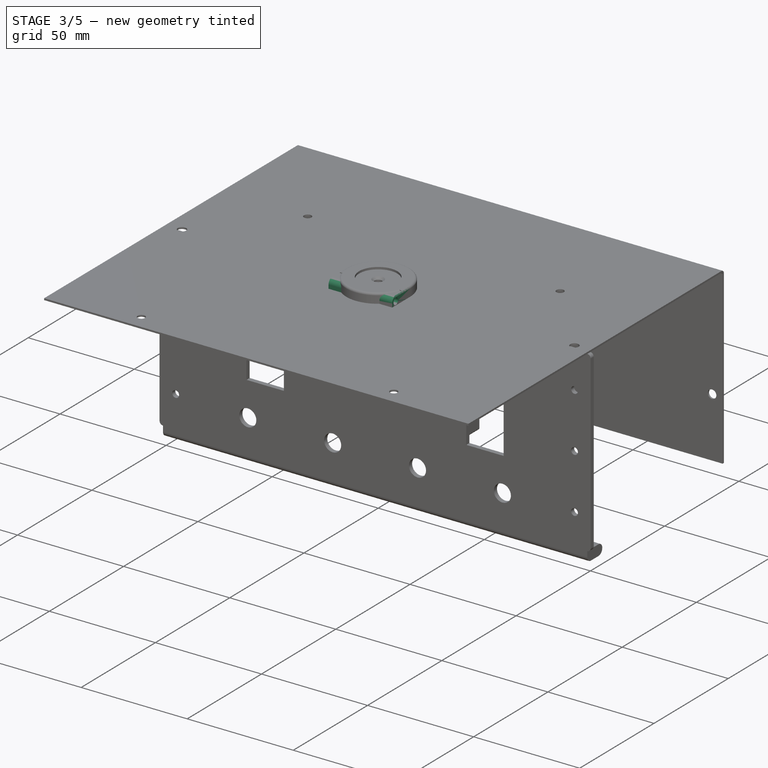
[diagram: stage 3 of 5 — iso view after this stage's code; geometry added in this stage tinted green]
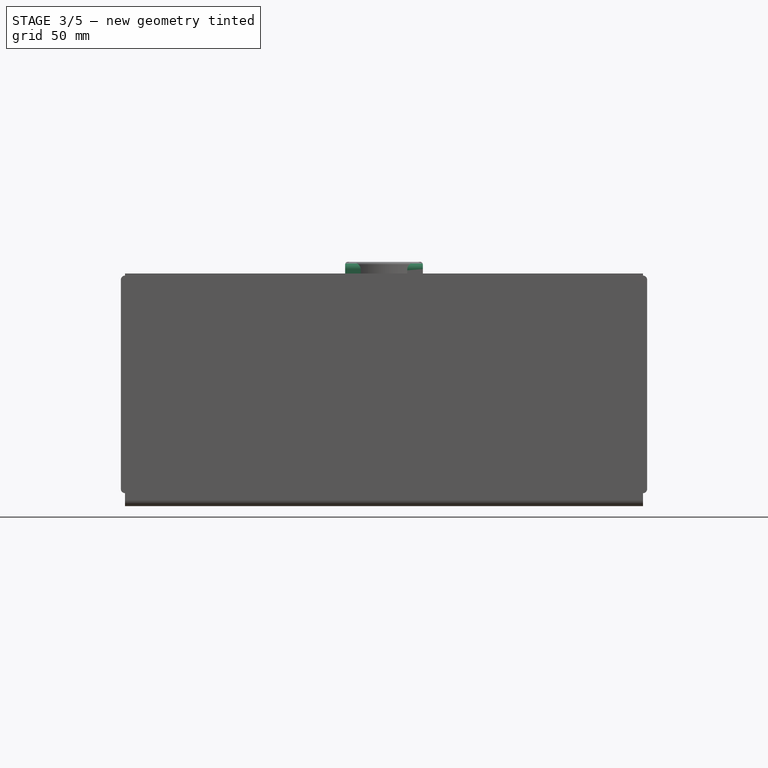
[diagram: stage 3 of 5 — front view after this stage's code; geometry added in this stage tinted green]
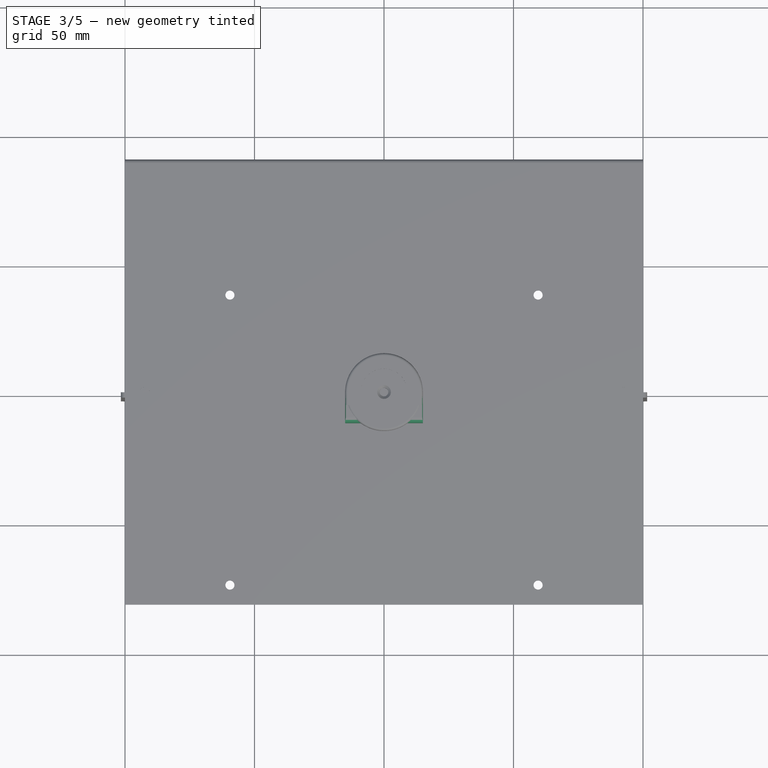
[diagram: stage 3 of 5 — top view after this stage's code; geometry added in this stage tinted green]
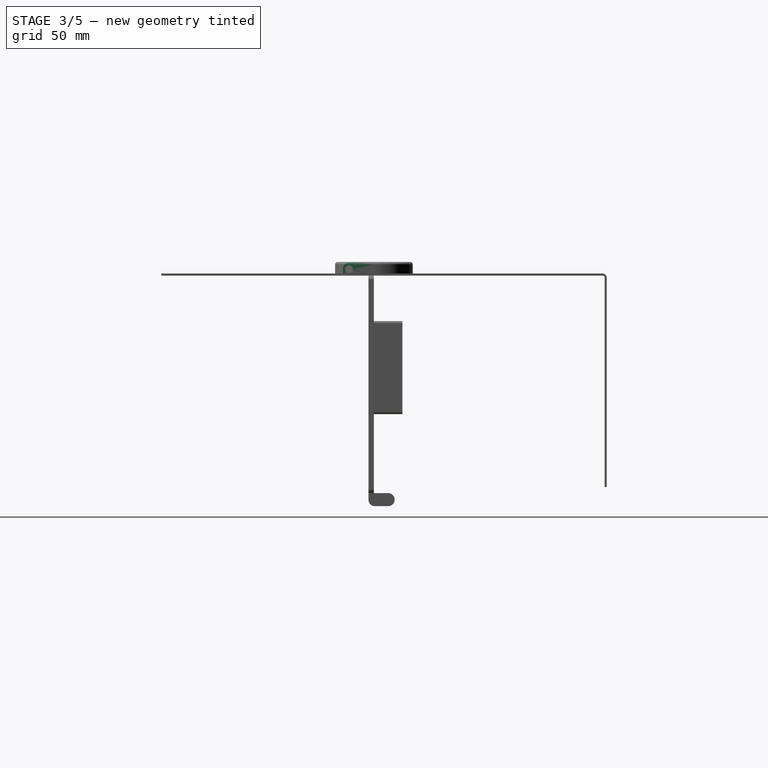
[diagram: stage 3 of 5 — right view after this stage's code; geometry added in this stage tinted green]
FEATURE [PartDesign::Body] Body006  label="Pad1"
  AllowCompound = false
  Group = -> [Sketch021,Pad010,Sketch022,Pocket008,Fillet003,Fillet004,Sketch023,Pocket009,Sketch024,Pocket010,Sketch025,Pocket011,Chamfer]
  Origin = -> Origin007
  Placement = pos=(59.5,-74.6,85) rot=(0,0,1;0rad)
  Tip = -> Chamfer
  expr: .Placement.Base.x = Spreadsheet.width / 2 - 40.5
  expr: .Placement.Base.y = -Spreadsheet.length / 2 + Spreadsheet.thickness + 12.1
  expr: .Placement.Base.z = Spreadsheet.height + 5
FEATURE [Sketcher::SketchObject] Sketch026
  ArcFitTolerance = 1e-06
  FullyConstrained = true
  MakeInternals = false
  sketch-geometry (4):
    g0: ArcOfCircle CenterX=0 CenterY=0 CenterZ=0 NormalX=0 NormalY=0 NormalZ=1 AngleXU=0 Radius=15 StartAngle=0 EndAngle=3.14159
    g1: LineSegment StartX=-15 StartY=1.8e-15 StartZ=0 EndX=-15 EndY=-12 EndZ=0
    g2: LineSegment StartX=-15 StartY=-12 StartZ=0 EndX=15 EndY=-12 EndZ=0
    g3: LineSegment StartX=15 StartY=0 StartZ=0 EndX=15 EndY=-12 EndZ=0
  constraints (12):
    c: PointOnObject(g0,g-1)
    c: PointOnObject(g0,g-1)
    c: Radius(g0) = 15
    c: Coincident(g0,g-1)
    c: Vertical(g1)
    c: Coincident(g2,g1)
    c: Horizontal(g2)
    c: Coincident(g3,g2)
    c: Vertical(g3)
    c: Coincident(g1,g0)
    c: Coincident(g3,g0)
    c: DistanceY(g1,g1) = 12
FEATURE [PartDesign::Pad] Pad011  label="Pad012"
  Direction = (0,0,1)
  Length = 5.3
  Length2 = 10
  Profile = -> Sketch026
  ReferenceAxis = -> Sketch026 [N_Axis]
  Refine = true
  Suppressed = false
  Type = 0
FEATURE [Sketcher::SketchObject] Sketch027
  ArcFitTolerance = 1e-06
  AttachmentSupport = -> [Pad011]
  FullyConstrained = false
  MakeInternals = false
  MapMode = 5
  Placement = pos=(0,0,5.3) rot=(0,0,1;0rad)
  sketch-geometry (4):
    g0: LineSegment StartX=-15.48 StartY=-5.04576 StartZ=0 EndX=-15.48 EndY=-13.2613 EndZ=0
    g1: LineSegment StartX=-15.48 StartY=-13.2613 StartZ=0 EndX=15.5826 EndY=-13.2613 EndZ=0
    g2: LineSegment StartX=15.5826 StartY=-13.2613 StartZ=0 EndX=15.5826 EndY=-5.04576 EndZ=0
    g3: LineSegment StartX=15.5826 StartY=-5.04576 StartZ=0 EndX=-15.48 EndY=-5.04576 EndZ=0
  constraints (8):
    c: Coincident(g0,g1)
    c: Coincident(g1,g2)
    c: Coincident(g2,g3)
    c: Coincident(g3,g0)
    c: Vertical(g0)
    c: Vertical(g2)
    c: Horizontal(g1)
    c: Horizontal(g3)
FEATURE [PartDesign::Pocket] Pocket012
  BaseFeature = -> Pad011
  Direction = (0,0,-1)
  Length = 0.305
  Length2 = 5
  Profile = -> Sketch027
  ReferenceAxis = -> Sketch027 [N_Axis]
  Refine = true
  Suppressed = false
  Type = 0
FEATURE [PartDesign::Fillet] Fillet005
  Base = -> Pocket012 [Edge17]
  BaseFeature = -> Pocket012
  Radius = 2.45
  Refine = true
  SupportTransform = false
  Suppressed = false
  UseAllEdges = false
FEATURE [PartDesign::Fillet] Fillet006
  Base = -> Fillet005 [Edge18]
  BaseFeature = -> Fillet005
  Radius = 1
  Refine = true
  SupportTransform = false
  Suppressed = false
  UseAllEdges = false
FEATURE [Sketcher::SketchObject] Sketch028
  ArcFitTolerance = 1e-06
  AttachmentSupport = -> [Fillet006]
  FullyConstrained = true
  MakeInternals = false
  MapMode = 5
  Placement = pos=(0,0,5.3) rot=(0,0,1;0rad)
  sketch-geometry (1):
    g0: Circle CenterX=0 CenterY=0 CenterZ=0 NormalX=0 NormalY=0 NormalZ=1 AngleXU=0 Radius=9
  constraints (2):
    c: Diameter(g0) = 18
    c: Coincident(g0,g-1)
FEATURE [PartDesign::Pocket] Pocket013
  BaseFeature = -> Fillet006
  Direction = (0,0,-1)
  Length = 1
  Length2 = 5
  Profile = -> Sketch028
  ReferenceAxis = -> Sketch028 [N_Axis]
  Refine = true
  Suppressed = false
  Type = 0
FEATURE [Sketcher::SketchObject] Sketch029
  ArcFitTolerance = 1e-06
  AttachmentSupport = -> [Pocket013]
  FullyConstrained = true
  MakeInternals = false
  MapMode = 5
  Placement = pos=(0,0,4.3) rot=(0,0,1;0rad)
  sketch-geometry (1):
    g0: Circle CenterX=0 CenterY=0 CenterZ=0 NormalX=0 NormalY=0 NormalZ=1 AngleXU=0 Radius=1.65
  constraints (2):
    c: Diameter(g0) = 3.3
    c: Coincident(g0,g-1)
FEATURE [PartDesign::Pocket] Pocket014
  BaseFeature = -> Pocket013
  Direction = (0,0,-1)
  Length = 5
  Length2 = 5
  Profile = -> Sketch029
  ReferenceAxis = -> Sketch029 [N_Axis]
  Refine = true
  Suppressed = false
  Type = 0
FEATURE [Sketcher::SketchObject] Sketch030
  ArcFitTolerance = 1e-06
  AttachmentSupport = -> [Pocket014]
  FullyConstrained = true
  MakeInternals = false
  MapMode = 5
  Placement = pos=(15,0,0) rot=(0.57735,0.57735,0.57735;2.0944rad)
  sketch-geometry (1):
    g0: Circle CenterX=-9.6 CenterY=2.5 CenterZ=0 NormalX=0 NormalY=0 NormalZ=1 AngleXU=0 Radius=1.5
  constraints (3):
    c: Diameter(g0) = 3
    c: DistanceX(g0) = -9.6
    c: DistanceY(g0) = 2.5
FEATURE [PartDesign::Pocket] Pocket015
  BaseFeature = -> Pocket014
  Direction = (-1,0,0)
  Length = 31
  Length2 = 5
  Profile = -> Sketch030
  ReferenceAxis = -> Sketch030 [N_Axis]
  Refine = true
  Suppressed = false
  Type = 0
FEATURE [PartDesign::Chamfer] Chamfer001
  Angle = 45
  Base = -> Pocket015 [Edge39]
  BaseFeature = -> Pocket015
  ChamferType = 0
  FlipDirection = false
  Refine = true
  Size = 1
  Size2 = 1
  SupportTransform = false
  Suppressed = false
  UseAllEdges = false
FEATURE [PartDesign::Fillet] Fillet007
  Base = -> Pocket018 [Edge3]
  BaseFeature = -> Pocket018
  Radius = 1
  Refine = true
  SupportTransform = false
  Suppressed = false
  UseAllEdges = false
FEATURE [PartDesign::Chamfer] Chamfer002
  Angle = 45
  Base = -> Fillet007 [Edge8]
  BaseFeature = -> Fillet007
  ChamferType = 0
  FlipDirection = false
  Refine = true
  Size = 1
  Size2 = 1
  SupportTransform = false
  Suppressed = false
  UseAllEdges = false
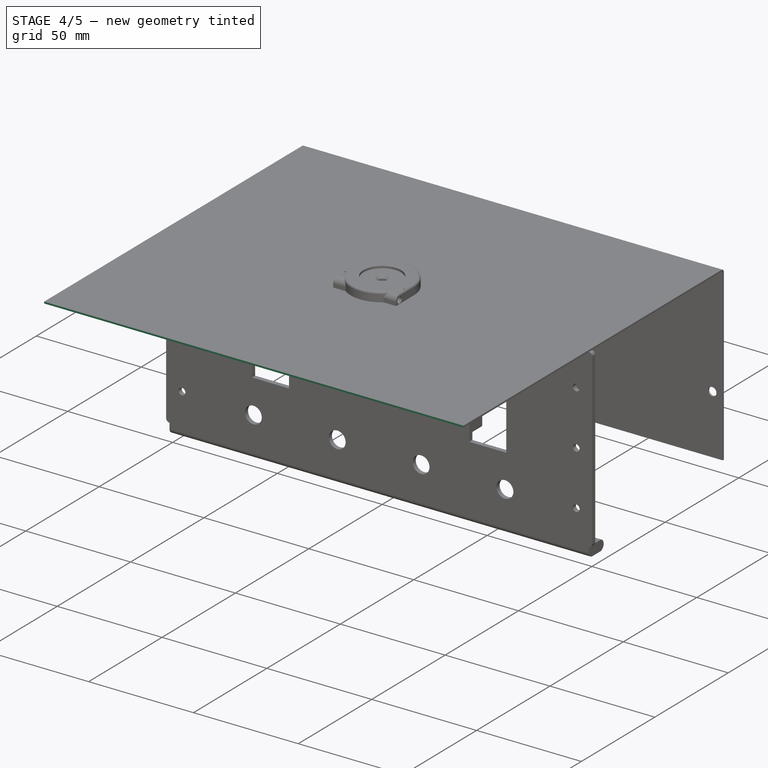
[diagram: stage 4 of 5 — iso view after this stage's code; geometry added in this stage tinted green]
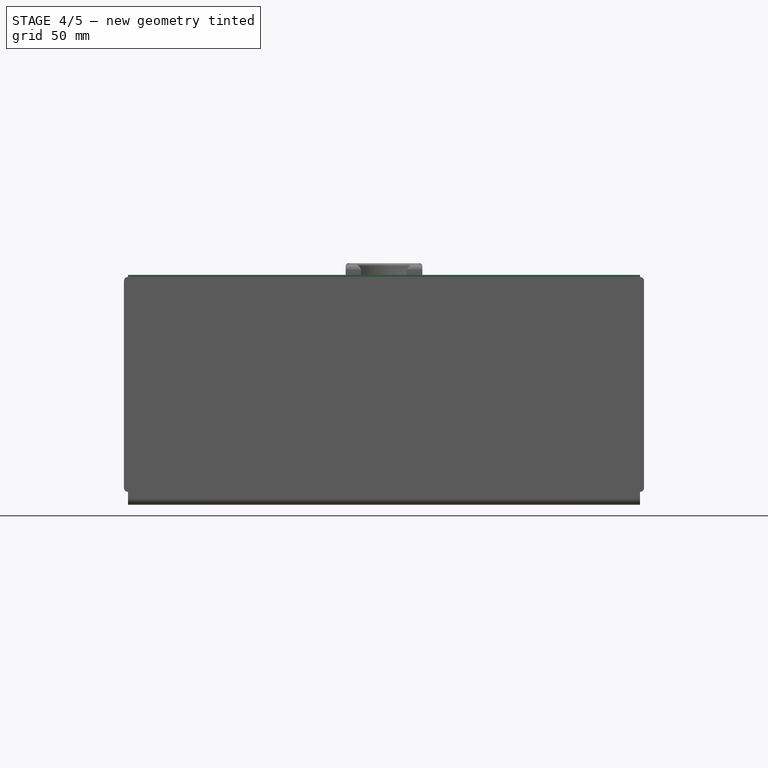
[diagram: stage 4 of 5 — front view after this stage's code; geometry added in this stage tinted green]
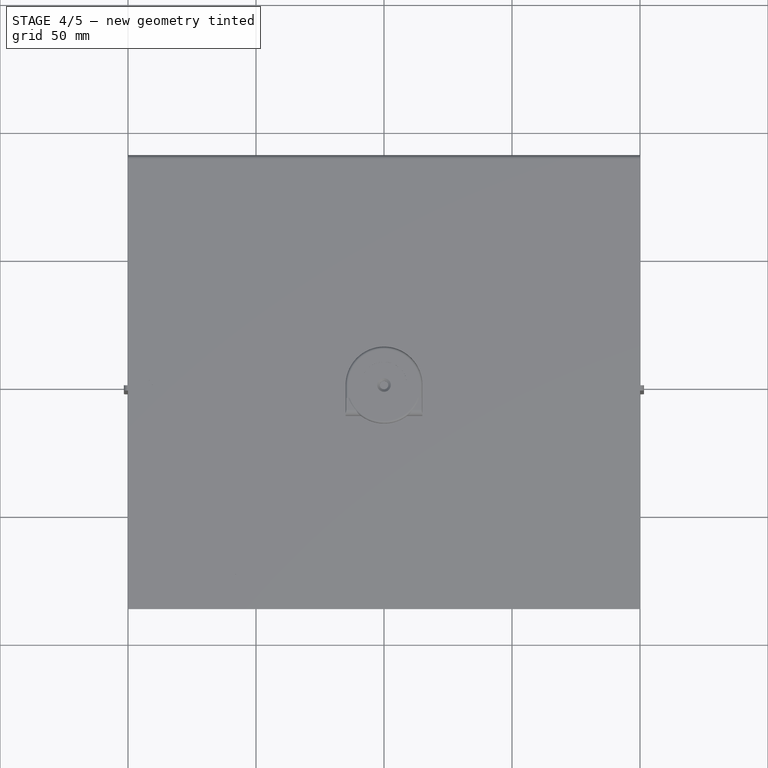
[diagram: stage 4 of 5 — top view after this stage's code; geometry added in this stage tinted green]
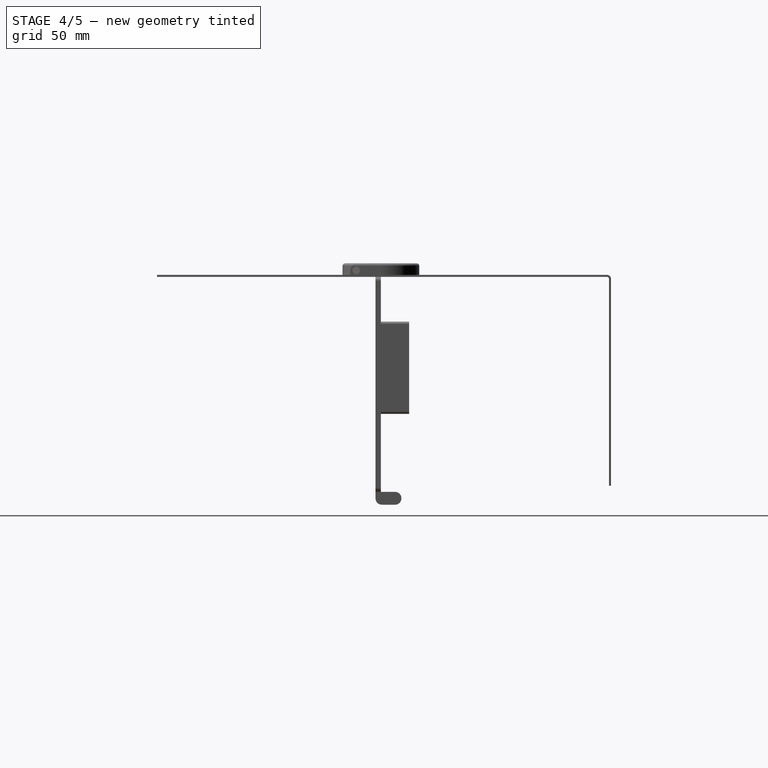
[diagram: stage 4 of 5 — right view after this stage's code; geometry added in this stage tinted green]
FEATURE [Spreadsheet::Sheet] Spreadsheet
  cells = A2='inner length (min 75); B2=175; C2(length)==B2 < 75 ? 75 : B2; A3='inner width (min 120); B3=200; C3(width)==B3 < 120 ? 120 : B3; A4='inner height (min 70); B4=80; C4(height)==B4 < 70 ? 70 : B4; A5='thickness (min 0.6 max 2.0); B5=0.8; C5(thickness)==B5 < 0.6 ? 0.6 : (B5 > 2 ? 2 : B5); A6='hole (min 1 max 6.0); B6=3.2; C6(hole)==B6 < 1 ? 1 : (B6 > 6 ? 6 : B6); A7='buthole (min 6 max 18); B7=8; C7(buthole)==B7 < 6 ? 6 : (B7 > 18 ? 18 : B7)
FEATURE [Sketcher::SketchObject] Sketch
  ArcFitTolerance = 0
  AttachmentSupport = -> [XY_Plane]
  FullyConstrained = true
  MakeInternals = false
  MapMode = 5
  expr: Constraints[8] = Spreadsheet.width
  expr: Constraints[9] = Spreadsheet.length
  sketch-geometry (4):
    g0: LineSegment StartX=-100 StartY=87.5 StartZ=0 EndX=100 EndY=87.5 EndZ=0
    g1: LineSegment StartX=100 StartY=87.5 StartZ=0 EndX=100 EndY=-87.5 EndZ=0
    g2: LineSegment StartX=100 StartY=-87.5 StartZ=0 EndX=-100 EndY=-87.5 EndZ=0
    g3: LineSegment StartX=-100 StartY=-87.5 StartZ=0 EndX=-100 EndY=87.5 EndZ=0
  constraints (10):
    c: Coincident(g0,g1)
    c: Coincident(g1,g2)
    c: Coincident(g2,g3)
    c: Coincident(g3,g0)
    c: Horizontal(g2)
    c: Vertical(g3)
    c: Symmetric(g0,g0,g-2)
    c: Symmetric(g0,g1,g-1)
    c: DistanceX(g0,g0) = 200
    c: DistanceY(g1,g1) = 175
FEATURE [PartDesign::Pad] Pad
  Direction = (0,0,1)
  Length = 0.8
  Length2 = 10
  Profile = -> Sketch
  ReferenceAxis = -> Sketch [N_Axis]
  Suppressed = false
  Type = 0
  expr: Length = Spreadsheet.thickness
FEATURE [Sketcher::SketchObject] Sketch021
  ArcFitTolerance = 1e-06
  FullyConstrained = true
  MakeInternals = false
  sketch-geometry (4):
    g0: ArcOfCircle CenterX=0 CenterY=0 CenterZ=0 NormalX=0 NormalY=0 NormalZ=1 AngleXU=0 Radius=15 StartAngle=0 EndAngle=3.14159
    g1: LineSegment StartX=-15 StartY=1.8e-15 StartZ=0 EndX=-15 EndY=-12 EndZ=0
    g2: LineSegment StartX=-15 StartY=-12 StartZ=0 EndX=15 EndY=-12 EndZ=0
    g3: LineSegment StartX=15 StartY=0 StartZ=0 EndX=15 EndY=-12 EndZ=0
  constraints (12):
    c: PointOnObject(g0,g-1)
    c: PointOnObject(g0,g-1)
    c: Radius(g0) = 15
    c: Coincident(g0,g-1)
    c: Vertical(g1)
    c: Coincident(g2,g1)
    c: Horizontal(g2)
    c: Coincident(g3,g2)
    c: Vertical(g3)
    c: Coincident(g1,g0)
    c: Coincident(g3,g0)
    c: DistanceY(g1,g1) = 12
FEATURE [PartDesign::Pad] Pad010
  Direction = (0,0,1)
  Length = 5.3
  Length2 = 10
  Profile = -> Sketch021
  ReferenceAxis = -> Sketch021 [N_Axis]
  Refine = true
  Suppressed = false
  Type = 0
FEATURE [Sketcher::SketchObject] Sketch022
  ArcFitTolerance = 1e-06
  AttachmentSupport = -> [Pad010]
  FullyConstrained = false
  MakeInternals = false
  MapMode = 5
  Placement = pos=(0,0,5.3) rot=(0,0,1;0rad)
  sketch-geometry (4):
    g0: LineSegment StartX=-15.48 StartY=-5.04576 StartZ=0 EndX=-15.48 EndY=-13.2613 EndZ=0
    g1: LineSegment StartX=-15.48 StartY=-13.2613 StartZ=0 EndX=15.5826 EndY=-13.2613 EndZ=0
    g2: LineSegment StartX=15.5826 StartY=-13.2613 StartZ=0 EndX=15.5826 EndY=-5.04576 EndZ=0
    g3: LineSegment StartX=15.5826 StartY=-5.04576 StartZ=0 EndX=-15.48 EndY=-5.04576 EndZ=0
  constraints (8):
    c: Coincident(g0,g1)
    c: Coincident(g1,g2)
    c: Coincident(g2,g3)
    c: Coincident(g3,g0)
    c: Vertical(g0)
    c: Vertical(g2)
    c: Horizontal(g1)
    c: Horizontal(g3)
FEATURE [PartDesign::Pocket] Pocket008
  BaseFeature = -> Pad010
  Direction = (0,0,-1)
  Length = 0.305
  Length2 = 5
  Profile = -> Sketch022
  ReferenceAxis = -> Sketch022 [N_Axis]
  Refine = true
  Suppressed = false
  Type = 0
FEATURE [PartDesign::Fillet] Fillet003
  Base = -> Pocket008 [Edge17]
  BaseFeature = -> Pocket008
  Radius = 2.45
  Refine = true
  SupportTransform = false
  Suppressed = false
  UseAllEdges = false
FEATURE [PartDesign::Fillet] Fillet004
  Base = -> Fillet003 [Edge18]
  BaseFeature = -> Fillet003
  Radius = 1
  Refine = true
  SupportTransform = false
  Suppressed = false
  UseAllEdges = false
FEATURE [Sketcher::SketchObject] Sketch023
  ArcFitTolerance = 1e-06
  AttachmentSupport = -> [Fillet004]
  FullyConstrained = true
  MakeInternals = false
  MapMode = 5
  Placement = pos=(0,0,5.3) rot=(0,0,1;0rad)
  sketch-geometry (1):
    g0: Circle CenterX=0 CenterY=0 CenterZ=0 NormalX=0 NormalY=0 NormalZ=1 AngleXU=0 Radius=9
  constraints (2):
    c: Diameter(g0) = 18
    c: Coincident(g0,g-1)
FEATURE [PartDesign::Pocket] Pocket009
  BaseFeature = -> Fillet004
  Direction = (0,0,-1)
  Length = 1
  Length2 = 5
  Profile = -> Sketch023
  ReferenceAxis = -> Sketch023 [N_Axis]
  Refine = true
  Suppressed = false
  Type = 0
FEATURE [Sketcher::SketchObject] Sketch024
  ArcFitTolerance = 1e-06
  AttachmentSupport = -> [Pocket009]
  FullyConstrained = true
  MakeInternals = false
  MapMode = 5
  Placement = pos=(0,0,4.3) rot=(0,0,1;0rad)
  sketch-geometry (1):
    g0: Circle CenterX=0 CenterY=0 CenterZ=0 NormalX=0 NormalY=0 NormalZ=1 AngleXU=0 Radius=1.65
  constraints (2):
    c: Diameter(g0) = 3.3
    c: Coincident(g0,g-1)
FEATURE [PartDesign::Pocket] Pocket010
  BaseFeature = -> Pocket009
  Direction = (0,0,-1)
  Length = 5
  Length2 = 5
  Profile = -> Sketch024
  ReferenceAxis = -> Sketch024 [N_Axis]
  Refine = true
  Suppressed = false
  Type = 0
FEATURE [Sketcher::SketchObject] Sketch025
  ArcFitTolerance = 1e-06
  AttachmentSupport = -> [Pocket010]
  FullyConstrained = true
  MakeInternals = false
  MapMode = 5
  Placement = pos=(15,0,0) rot=(0.57735,0.57735,0.57735;2.0944rad)
  sketch-geometry (1):
    g0: Circle CenterX=-9.6 CenterY=2.5 CenterZ=0 NormalX=0 NormalY=0 NormalZ=1 AngleXU=0 Radius=1.5
  constraints (3):
    c: Diameter(g0) = 3
    c: DistanceX(g0) = -9.6
    c: DistanceY(g0) = 2.5
FEATURE [PartDesign::Pocket] Pocket011
  BaseFeature = -> Pocket010
  Direction = (-1,0,0)
  Length = 31
  Length2 = 5
  Profile = -> Sketch025
  ReferenceAxis = -> Sketch025 [N_Axis]
  Refine = true
  Suppressed = false
  Type = 0
FEATURE [PartDesign::Chamfer] Chamfer
  Angle = 45
  Base = -> Pocket011 [Edge39]
  BaseFeature = -> Pocket011
  ChamferType = 0
  FlipDirection = false
  Refine = true
  Size = 1
  Size2 = 1
  SupportTransform = false
  Suppressed = false
  UseAllEdges = false
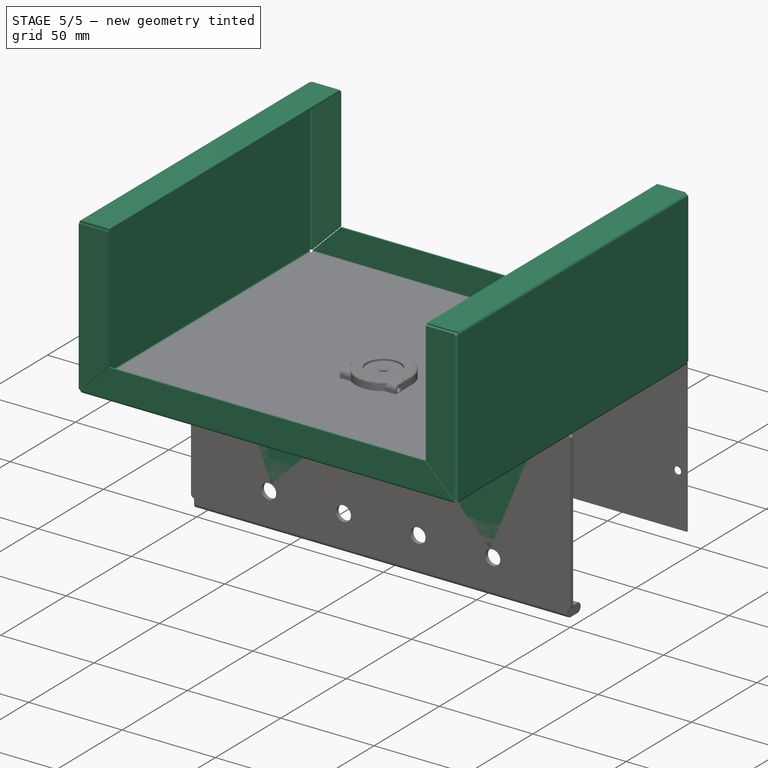
[diagram: stage 5 of 5 — iso view after this stage's code; geometry added in this stage tinted green]
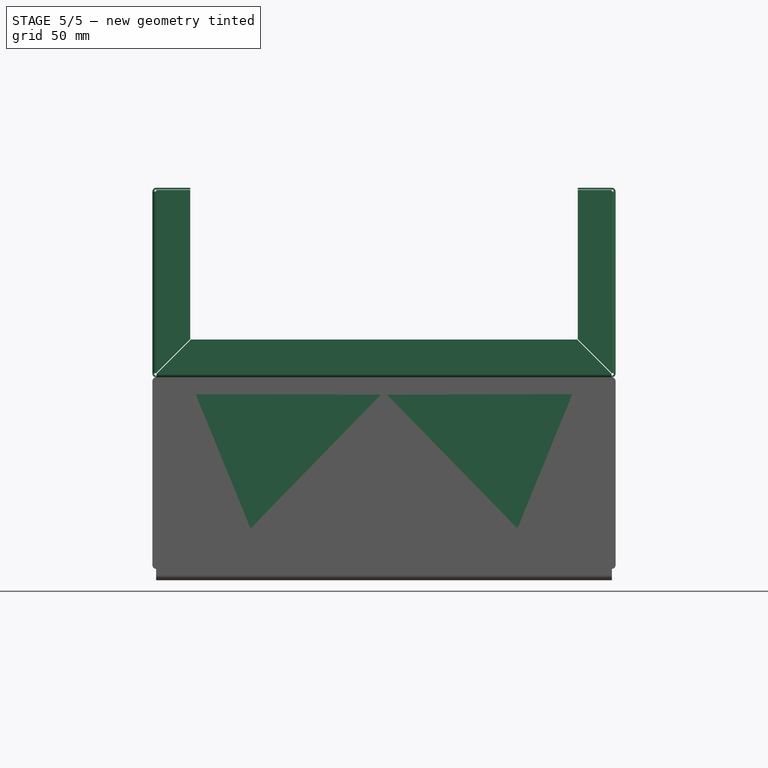
[diagram: stage 5 of 5 — front view after this stage's code; geometry added in this stage tinted green]
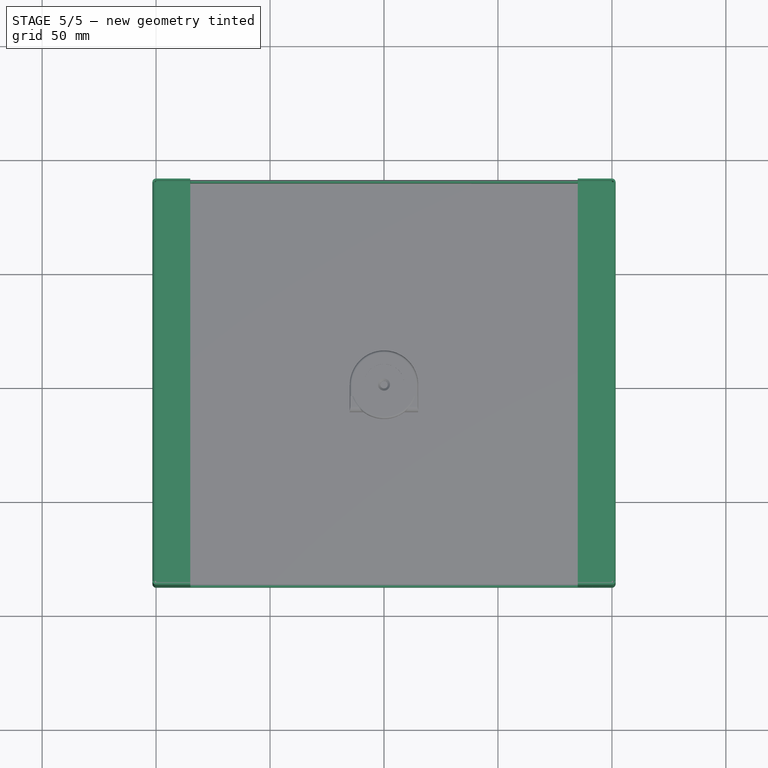
[diagram: stage 5 of 5 — top view after this stage's code; geometry added in this stage tinted green]
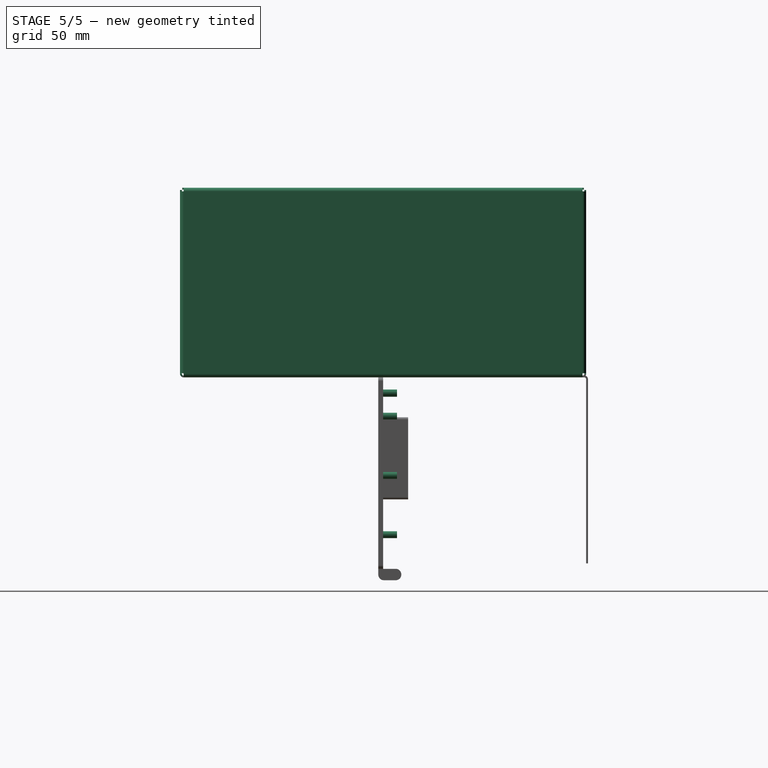
[diagram: stage 5 of 5 — right view after this stage's code; geometry added in this stage tinted green]
FEATURE [Sketcher::SketchObject] Sketch013
  ArcFitTolerance = 0
  AttachmentSupport = -> [XZ_Plane005]
  FullyConstrained = true
  MakeInternals = false
  MapMode = 5
  Placement = pos=(0,0,0) rot=(1,0,0;1.5708rad)
  expr: Constraints[14] = Spreadsheet.thickness * 2
  expr: Constraints[16] = Spreadsheet.width
  expr: Constraints[17] = Spreadsheet.height + Spreadsheet.thickness
  expr: Constraints[25] = Spreadsheet.width - 20
  expr: Constraints[31] = Spreadsheet.buthole
  expr: Constraints[34] = Spreadsheet.width / 5
  expr: Constraints[35] = Spreadsheet.width / 5
  expr: Constraints[36] = -Spreadsheet.height + 10
  expr: Constraints[37] = -Spreadsheet.height + 10
  expr: Constraints[38] = Spreadsheet.height - Spreadsheet.buthole / 2 - 30
  sketch-geometry (16):
    g0: LineSegment StartX=-100 StartY=0 StartZ=0 EndX=100 EndY=0 EndZ=0
    g1: LineSegment StartX=101.6 StartY=-1.6 StartZ=0 EndX=101.6 EndY=-82.4 EndZ=0
    g2: LineSegment StartX=-101.6 StartY=-1.6 StartZ=0 EndX=-101.6 EndY=-82.4 EndZ=0
    g3: LineSegment StartX=-100 StartY=-84 StartZ=0 EndX=100 EndY=-84 EndZ=0
    g4: ArcOfCircle CenterX=-100 CenterY=-1.6 CenterZ=0 NormalX=0 NormalY=0 NormalZ=1 AngleXU=0 Radius=1.6 StartAngle=1.5708 EndAngle=3.14159
    g5: ArcOfCircle CenterX=100 CenterY=-1.6 CenterZ=0 NormalX=0 NormalY=0 NormalZ=1 AngleXU=0 Radius=1.6 StartAngle=0 EndAngle=1.5708
    g6: ArcOfCircle CenterX=100 CenterY=-82.4 CenterZ=0 NormalX=0 NormalY=0 NormalZ=1 AngleXU=0 Radius=1.6 StartAngle=4.71239 EndAngle=6.28319
    g7: ArcOfCircle CenterX=-100 CenterY=-82.4 CenterZ=0 NormalX=0 NormalY=0 NormalZ=1 AngleXU=0 Radius=1.6 StartAngle=3.14159 EndAngle=4.71239
    g8: LineSegment StartX=-90 StartY=-14 StartZ=0 EndX=90 EndY=-14 EndZ=0
    g9: LineSegment StartX=90 StartY=-14 StartZ=0 EndX=90 EndY=-60 EndZ=0
    g10: LineSegment StartX=90 StartY=-60 StartZ=0 EndX=-90 EndY=-60 EndZ=0
    g11: LineSegment StartX=-90 StartY=-60 StartZ=0 EndX=-90 EndY=-14 EndZ=0
    g12: Circle CenterX=-20 CenterY=-70 CenterZ=0 NormalX=0 NormalY=0 NormalZ=1 AngleXU=0 Radius=4
    g13: Circle CenterX=20 CenterY=-70 CenterZ=0 NormalX=0 NormalY=0 NormalZ=1 AngleXU=0 Radius=4
    g14: Circle CenterX=60 CenterY=-70 CenterZ=0 NormalX=0 NormalY=0 NormalZ=1 AngleXU=0 Radius=4
    g15: Circle CenterX=-60 CenterY=-70 CenterZ=0 NormalX=0 NormalY=0 NormalZ=1 AngleXU=0 Radius=4
  constraints (40):
    c: Vertical(g1)
    c: Vertical(g2)
    c: Horizontal(g3)
    c: Tangent(g5,g0) = 1.5708
    c: Tangent(g5,g1) = 1.5708
    c: Tangent(g4,g2) = -1.5708
    c: Tangent(g4,g0) = 1.5708
    c: Tangent(g7,g2) = -1.5708
    c: Tangent(g7,g3) = -1.5708
    c: Tangent(g6,g3) = -1.5708
    c: Tangent(g6,g1) = 1.5708
    c: Equal(g4,g5)
    c: Equal(g5,g6)
    c: Equal(g6,g7)
    c: Radius(g4) = 1.6
    c: Symmetric(g0,g0,g-2)
    c: DistanceX(g0,g0) = 200
    c: DistanceY(g2,g2) = 80.8
    c: Coincident(g8,g9)
    c: Coincident(g9,g10)
    c: Coincident(g10,g11)
    c: Coincident(g11,g8)
    c: Horizontal(g10)
    c: Vertical(g9)
    c: Vertical(g11)
    c: DistanceX(g8,g8) = 180
    c: Symmetric(g8,g8,g-2)
    c: DistanceY(g8) = -14
    c: Equal(g15,g12)
    c: Equal(g12,g13)
    c: Equal(g13,g14)
    c: Diameter(g15) = 8
    c: Symmetric(g12,g13,g-2)
    c: Symmetric(g15,g14,g-2)
    c: DistanceX(g15,g12) = 40
    c: DistanceX(g12,g13) = 40
    c: DistanceY(g15) = -70
    c: DistanceY(g12) = -70
    c: DistanceY(g11,g11) = 46
    c: PointOnObject(g0,g-1)
FEATURE [PartDesign::Pad] Pad005
  Direction = (0,-1,2e-16)
  Length = 2.1
  Length2 = 10
  Placement = pos=(0,0,0) rot=(1,0,0;1.5708rad)
  Profile = -> Sketch013
  ReferenceAxis = -> Sketch013 [N_Axis]
  Suppressed = false
  Type = 0
FEATURE [Sketcher::SketchObject] Sketch014
  ArcFitTolerance = 0
  FullyConstrained = true
  MakeInternals = false
  MapMode = 5
  Placement = pos=(0,0,0) rot=(1,0,0;1.5708rad)
  expr: Constraints[10] = Spreadsheet.width - 32
  expr: Constraints[11] = Spreadsheet.height - 28
  expr: Constraints[12] = Spreadsheet.width - 12
  expr: Constraints[13] = -17 mm
  expr: Constraints[14] = Spreadsheet.width - 12
  expr: Constraints[17] = -7
  expr: Constraints[21] = Spreadsheet.width - 12
  expr: Constraints[22] = -Spreadsheet.height / 2 - 3
  expr: Constraints[5] = Spreadsheet.hole - 0.2
  expr: Constraints[9] = -Spreadsheet.thickness - 6
  sketch-geometry (9):
    g0: Circle CenterX=-84 CenterY=-6.8 CenterZ=0 NormalX=0 NormalY=0 NormalZ=1 AngleXU=0 Radius=1.5
    g1: Circle CenterX=84 CenterY=-6.8 CenterZ=0 NormalX=0 NormalY=0 NormalZ=1 AngleXU=0 Radius=1.5
    g2: Circle CenterX=94 CenterY=-17 CenterZ=0 NormalX=0 NormalY=0 NormalZ=1 AngleXU=0 Radius=1.5
    g3: Circle CenterX=94 CenterY=-69 CenterZ=0 NormalX=0 NormalY=0 NormalZ=1 AngleXU=0 Radius=1.5
    g4: Circle CenterX=-94 CenterY=-69 CenterZ=0 NormalX=0 NormalY=0 NormalZ=1 AngleXU=0 Radius=1.5
    g5: Circle CenterX=-94 CenterY=-17 CenterZ=0 NormalX=0 NormalY=0 NormalZ=1 AngleXU=0 Radius=1.5
    g6: Circle CenterX=0 CenterY=-7 CenterZ=0 NormalX=0 NormalY=0 NormalZ=1 AngleXU=0 Radius=1.5
    g7: Circle CenterX=-94 CenterY=-43 CenterZ=0 NormalX=0 NormalY=0 NormalZ=1 AngleXU=0 Radius=1.5
    g8: Circle CenterX=94 CenterY=-43 CenterZ=0 NormalX=0 NormalY=0 NormalZ=1 AngleXU=0 Radius=1.5
  constraints (23):
    c: Equal(g0,g1)
    c: Equal(g1,g2)
    c: Equal(g2,g3)
    c: Equal(g3,g4)
    c: Equal(g4,g5)
    c: Diameter(g0) = 3
    c: Symmetric(g0,g1,g-2)
    c: Symmetric(g5,g2,g-2)
    c: Symmetric(g4,g3,g-2)
    c: DistanceY(g0) = -6.8
    c: DistanceX(g0,g1) = 168
    c: DistanceY(g4,g5) = 52
    c: DistanceX(g5,g2) = 188
    c: DistanceY(g5) = -17
    c: DistanceX(g4,g3) = 188
    c: PointOnObject(g6,g-2)
    c: Equal(g5,g6)
    c: DistanceY(g6) = -7
    c: Equal(g6,g8)
    c: Equal(g8,g7)
    c: Symmetric(g7,g8,g-2)
    c: DistanceX(g7,g8) = 188
    c: DistanceY(g7) = -43
FEATURE [PartDesign::Pad] Pad006
  BaseFeature = -> Pad005
  Direction = (0,-1,0)
  Length = 6.1
  Length2 = 10
  Placement = pos=(0,0,0) rot=(1,0,0;1.5708rad)
  Profile = -> Sketch014
  ReferenceAxis = -> Sketch014 [N_Axis]
  Reversed = true
  Suppressed = false
  Type = 0
FEATURE [Sketcher::SketchObject] Sketch015
  ArcFitTolerance = 0
  AttachmentSupport = -> [Pad006]
  FullyConstrained = true
  MakeInternals = false
  MapMode = 5
  Placement = pos=(0,-2.1,0) rot=(1,0,0;1.5708rad)
  expr: Constraints[5] = Spreadsheet.buthole + 4
  expr: Constraints[6] = -Spreadsheet.height + 10
  expr: Constraints[7] = Spreadsheet.width / 5
  expr: Constraints[8] = Spreadsheet.width / 5
  expr: Constraints[9] = -Spreadsheet.height + 10
  sketch-geometry (4):
    g0: Circle CenterX=-60 CenterY=-70 CenterZ=0 NormalX=0 NormalY=0 NormalZ=1 AngleXU=0 Radius=6
    g1: Circle CenterX=-20 CenterY=-70 CenterZ=0 NormalX=0 NormalY=0 NormalZ=1 AngleXU=0 Radius=6
    g2: Circle CenterX=20 CenterY=-70 CenterZ=0 NormalX=0 NormalY=0 NormalZ=1 AngleXU=0 Radius=6
    g3: Circle CenterX=60 CenterY=-70 CenterZ=0 NormalX=0 NormalY=0 NormalZ=1 AngleXU=0 Radius=6
  constraints (10):
    c: Equal(g0,g1)
    c: Equal(g1,g2)
    c: Equal(g2,g3)
    c: Symmetric(g1,g2,g-2)
    c: Symmetric(g0,g3,g-2)
    c: Diameter(g0) = 12
    c: DistanceY(g0) = -70
    c: DistanceX(g0,g1) = 40
    c: DistanceX(g1,g2) = 40
    c: DistanceY(g1) = -70
FEATURE [PartDesign::Pocket] Pocket005
  BaseFeature = -> Pad006
  Direction = (0,1,-2e-16)
  Length = 1.2
  Length2 = 5
  Placement = pos=(0,0,0) rot=(1,0,0;1.5708rad)
  Profile = -> Sketch015
  ReferenceAxis = -> Sketch015 [N_Axis]
  Suppressed = false
  Type = 0
FEATURE [PartDesign::Fillet] Fillet
  Base = -> Pocket005 [Edge38,Edge39,Edge40,Edge41]
  BaseFeature = -> Pocket005
  Placement = pos=(0,0,0) rot=(1,0,0;1.5708rad)
  Radius = 1.1
  SupportTransform = false
  Suppressed = false
  UseAllEdges = false
FEATURE [Sketcher::SketchObject] Sketch016
  ArcFitTolerance = 0
  AttachmentSupport = -> [XZ_Plane006]
  FullyConstrained = true
  MakeInternals = false
  MapMode = 5
  Placement = pos=(0,0,0) rot=(1,0,0;1.5708rad)
  expr: Constraints[14] = Spreadsheet.thickness * 2
  expr: Constraints[16] = Spreadsheet.width
  expr: Constraints[17] = Spreadsheet.height + Spreadsheet.thickness
  expr: Constraints[21] = Spreadsheet.buthole
  expr: Constraints[24] = Spreadsheet.width / 5
  expr: Constraints[25] = Spreadsheet.width / 5
  expr: Constraints[26] = -Spreadsheet.height + 10
  expr: Constraints[27] = -Spreadsheet.height + 10
  sketch-geometry (12):
    g0: LineSegment StartX=-100 StartY=0 StartZ=0 EndX=100 EndY=0 EndZ=0
    g1: LineSegment StartX=101.6 StartY=-1.6 StartZ=0 EndX=101.6 EndY=-82.4 EndZ=0
    g2: LineSegment StartX=-101.6 StartY=-1.6 StartZ=0 EndX=-101.6 EndY=-82.4 EndZ=0
    g3: LineSegment StartX=-100 StartY=-84 StartZ=0 EndX=100 EndY=-84 EndZ=0
    g4: ArcOfCircle CenterX=-100 CenterY=-1.6 CenterZ=0 NormalX=0 NormalY=0 NormalZ=1 AngleXU=0 Radius=1.6 StartAngle=1.5708 EndAngle=3.14159
    g5: ArcOfCircle CenterX=100 CenterY=-1.6 CenterZ=0 NormalX=0 NormalY=0 NormalZ=1 AngleXU=0 Radius=1.6 StartAngle=0 EndAngle=1.5708
    g6: ArcOfCircle CenterX=100 CenterY=-82.4 CenterZ=0 NormalX=0 NormalY=0 NormalZ=1 AngleXU=0 Radius=1.6 StartAngle=4.71239 EndAngle=6.28319
    g7: ArcOfCircle CenterX=-100 CenterY=-82.4 CenterZ=0 NormalX=0 NormalY=0 NormalZ=1 AngleXU=0 Radius=1.6 StartAngle=3.14159 EndAngle=4.71239
    g8: Circle CenterX=-20 CenterY=-70 CenterZ=0 NormalX=0 NormalY=0 NormalZ=1 AngleXU=0 Radius=4
    g9: Circle CenterX=20 CenterY=-70 CenterZ=0 NormalX=0 NormalY=0 NormalZ=1 AngleXU=0 Radius=4
    g10: Circle CenterX=60 CenterY=-70 CenterZ=0 NormalX=0 NormalY=0 NormalZ=1 AngleXU=0 Radius=4
    g11: Circle CenterX=-60 CenterY=-70 CenterZ=0 NormalX=0 NormalY=0 NormalZ=1 AngleXU=0 Radius=4
  constraints (29):
    c: Vertical(g1)
    c: Vertical(g2)
    c: Horizontal(g3)
    c: Tangent(g5,g0) = 1.5708
    c: Tangent(g5,g1) = 1.5708
    c: Tangent(g4,g2) = -1.5708
    c: Tangent(g4,g0) = 1.5708
    c: Tangent(g7,g2) = -1.5708
    c: Tangent(g7,g3) = -1.5708
    c: Tangent(g6,g3) = -1.5708
    c: Tangent(g6,g1) = 1.5708
    c: Equal(g4,g5)
    c: Equal(g5,g6)
    c: Equal(g6,g7)
    c: Radius(g4) = 1.6
    c: Symmetric(g0,g0,g-2)
    c: DistanceX(g0,g0) = 200
    c: DistanceY(g2,g2) = 80.8
    c: Equal(g11,g8)
    c: Equal(g8,g9)
    c: Equal(g9,g10)
    c: Diameter(g11) = 8
    c: Symmetric(g8,g9,g-2)
    c: Symmetric(g11,g10,g-2)
    c: DistanceX(g11,g8) = 40
    c: DistanceX(g8,g9) = 40
    c: DistanceY(g11) = -70
    c: DistanceY(g8) = -70
    c: PointOnObject(g0,g-1)
FEATURE [PartDesign::Pad] Pad007
  Direction = (0,-1,2e-16)
  Length = 2.1
  Length2 = 10
  Placement = pos=(0,0,0) rot=(1,0,0;1.5708rad)
  Profile = -> Sketch016
  ReferenceAxis = -> Sketch016 [N_Axis]
  Suppressed = false
  Type = 0
FEATURE [Sketcher::SketchObject] Sketch017
  ArcFitTolerance = 0
  FullyConstrained = true
  MakeInternals = false
  MapMode = 5
  Placement = pos=(0,0,0) rot=(1,0,0;1.5708rad)
  expr: Constraints[10] = Spreadsheet.width - 32
  expr: Constraints[11] = Spreadsheet.height - 28
  expr: Constraints[12] = Spreadsheet.width - 12
  expr: Constraints[13] = -17 mm
  expr: Constraints[14] = Spreadsheet.width - 12
  expr: Constraints[17] = -7
  expr: Constraints[21] = Spreadsheet.width - 12
  expr: Constraints[22] = -Spreadsheet.height / 2 - 3
  expr: Constraints[5] = Spreadsheet.hole - 0.2
  expr: Constraints[9] = -Spreadsheet.thickness - 6
  sketch-geometry (9):
    g0: Circle CenterX=-84 CenterY=-6.8 CenterZ=0 NormalX=0 NormalY=0 NormalZ=1 AngleXU=0 Radius=1.5
    g1: Circle CenterX=84 CenterY=-6.8 CenterZ=0 NormalX=0 NormalY=0 NormalZ=1 AngleXU=0 Radius=1.5
    g2: Circle CenterX=94 CenterY=-17 CenterZ=0 NormalX=0 NormalY=0 NormalZ=1 AngleXU=0 Radius=1.5
    g3: Circle CenterX=94 CenterY=-69 CenterZ=0 NormalX=0 NormalY=0 NormalZ=1 AngleXU=0 Radius=1.5
    g4: Circle CenterX=-94 CenterY=-69 CenterZ=0 NormalX=0 NormalY=0 NormalZ=1 AngleXU=0 Radius=1.5
    g5: Circle CenterX=-94 CenterY=-17 CenterZ=0 NormalX=0 NormalY=0 NormalZ=1 AngleXU=0 Radius=1.5
    g6: Circle CenterX=0 CenterY=-7 CenterZ=0 NormalX=0 NormalY=0 NormalZ=1 AngleXU=0 Radius=1.5
    g7: Circle CenterX=-94 CenterY=-43 CenterZ=0 NormalX=0 NormalY=0 NormalZ=1 AngleXU=0 Radius=1.5
    g8: Circle CenterX=94 CenterY=-43 CenterZ=0 NormalX=0 NormalY=0 NormalZ=1 AngleXU=0 Radius=1.5
  constraints (23):
    c: Equal(g0,g1)
    c: Equal(g1,g2)
    c: Equal(g2,g3)
    c: Equal(g3,g4)
    c: Equal(g4,g5)
    c: Diameter(g0) = 3
    c: Symmetric(g0,g1,g-2)
    c: Symmetric(g5,g2,g-2)
    c: Symmetric(g4,g3,g-2)
    c: DistanceY(g0) = -6.8
    c: DistanceX(g0,g1) = 168
    c: DistanceY(g4,g5) = 52
    c: DistanceX(g5,g2) = 188
    c: DistanceY(g5) = -17
    c: DistanceX(g4,g3) = 188
    c: PointOnObject(g6,g-2)
    c: Equal(g5,g6)
    c: DistanceY(g6) = -7
    c: Equal(g6,g8)
    c: Equal(g8,g7)
    c: Symmetric(g7,g8,g-2)
    c: DistanceX(g7,g8) = 188
    c: DistanceY(g7) = -43
FEATURE [PartDesign::Pocket] Pocket006
  BaseFeature = -> Pad007
  Direction = (0,1,0)
  Length = 5
  Length2 = 5
  Placement = pos=(0,0,0) rot=(1,0,0;1.5708rad)
  Profile = -> Sketch017
  ReferenceAxis = -> Sketch017 [N_Axis]
  Reversed = true
  Suppressed = false
  Type = 0
FEATURE [PartDesign::Body] Body005  label="PanelTransparent"
  AllowCompound = false
  Group = -> [Sketch016,Pad007,Sketch017,Pocket006]
  Origin = -> Origin005
  Placement = pos=(0,-94.1,7e-16) rot=(1,0,0;3.14159rad)
  Tip = -> Pocket006
  expr: .Placement.Base.y = -Spreadsheet.length / 2 - Spreadsheet.thickness * 2 - 5
FEATURE [PartDesign::FeaturePython] Bend  # WARN: FeaturePython — macro-defined, semantics opaque (R4)
  AngleFaceRefMode = false
  AutoMiter = true
  BaseFeature = -> Pad
  BendType = 0
  LengthList = [80]
  LengthSpec = 0
  NonperforationMaxLength = 5
  OffsetFaceRefMode = false
  OffsetType = 1
  OffsetTypeOffset = 0
  Perforate = false
  PerforationAngle = 0
  PerforationInitialLength = 5
  PerforationMaxLength = 5
  RelativeAngleToRef = 0
  ReliefFactor = 0.7
  SupplAngleRef = false
  Suppressed = false
  UseReliefFactor = false
  angle = 90
  baseObject = -> Pad [Edge12,Edge7]
  bendAList = [90]
  extend1 = 0
  extend2 = 0
  gap1 = 0
  gap2 = 0
  invert = false
  kfactor = 0.5
  length = 80
  maxExtendDist = 5
  minGap = 0.2
  minReliefGap = 1
  miterangle1 = 0
  miterangle2 = 0
  offset = 0
  radius = 0.8
  reliefType = 0
  reliefd = 1
  reliefw = 0.8
  sketchflip = false
  sketchinvert = false
  unfold = false
  expr: length = Spreadsheet.height
  expr: radius = Spreadsheet.thickness
FEATURE [PartDesign::Fillet] Fillet001
  Base = -> Fillet [Face1]
  BaseFeature = -> Fillet
  Placement = pos=(0,0,0) rot=(1,0,0;1.5708rad)
  Radius = 1
  SupportTransform = false
  Suppressed = false
  UseAllEdges = false
FEATURE [PartDesign::FeaturePython] Bend006  # WARN: FeaturePython — macro-defined, semantics opaque (R4)
  AngleFaceRefMode = false
  AutoMiter = true
  BaseFeature = -> Bend
  BendType = 0
  LengthList = [15]
  LengthSpec = 0
  NonperforationMaxLength = 5
  OffsetFaceRefMode = false
  OffsetType = 1
  OffsetTypeOffset = 0
  Perforate = false
  PerforationAngle = 0
  PerforationInitialLength = 5
  PerforationMaxLength = 5
  RelativeAngleToRef = 0
  ReliefFactor = 0.7
  SupplAngleRef = false
  Suppressed = false
  UseReliefFactor = false
  angle = 90
  baseObject = -> Bend [Edge15,?Edge36,?Edge37,Edge22,Edge4,Edge41,Edge40,Edge29]
  bendAList = [90]
  extend1 = 0
  extend2 = 0
  gap1 = 0
  gap2 = 0
  invert = false
  kfactor = 0.5
  length = 15
  maxExtendDist = 5
  minGap = 0.2
  minReliefGap = 1
  miterangle1 = 0
  miterangle2 = 0
  offset = 0
  radius = 0.8
  reliefType = 0
  reliefd = 1
  reliefw = 0.8
  sketchflip = false
  sketchinvert = false
  unfold = false
  expr: radius = Spreadsheet.thickness
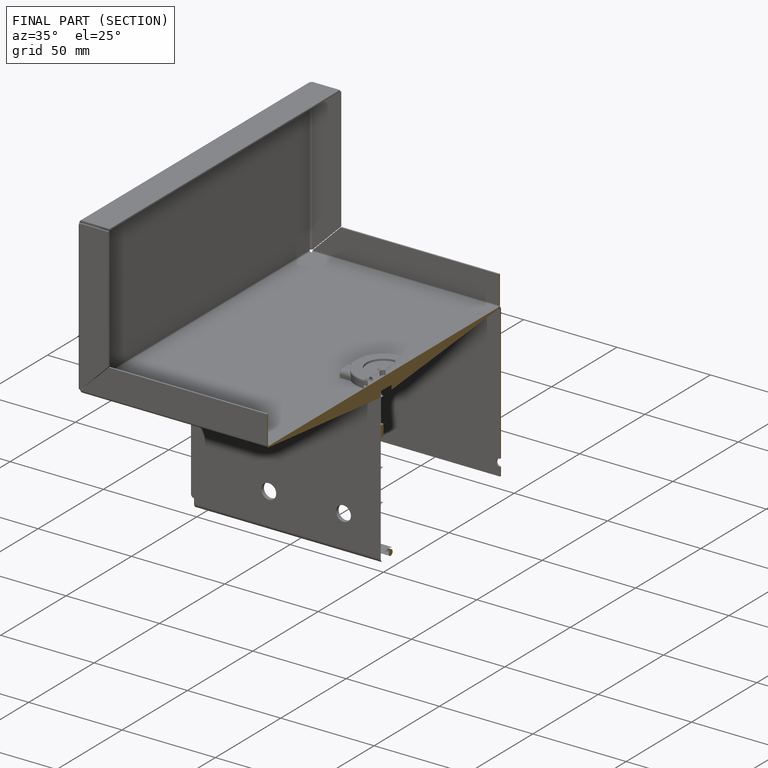
[diagram: finished part — half-section view (interior)]
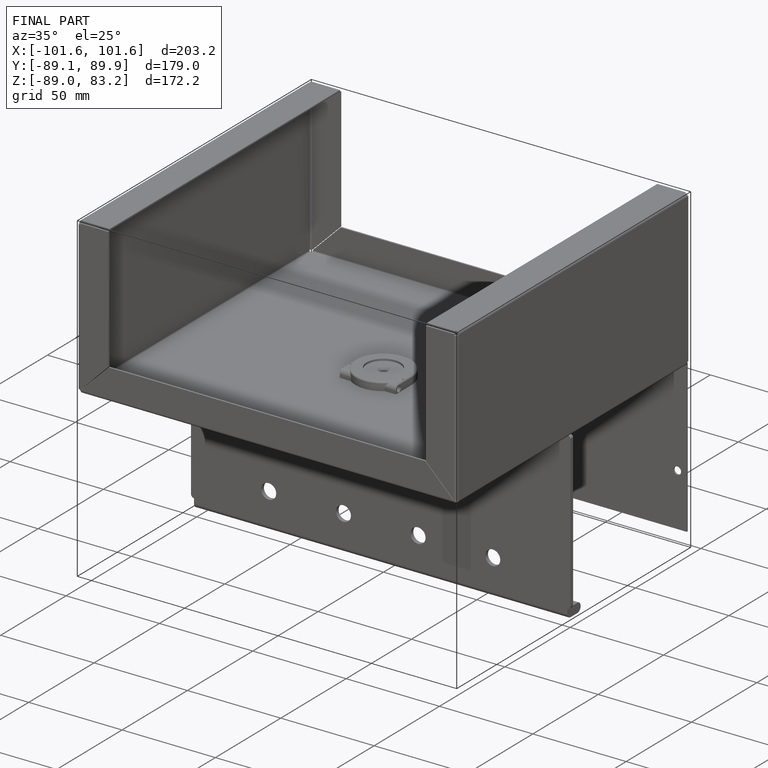
[diagram: finished part — iso view with bounding-box wireframe]
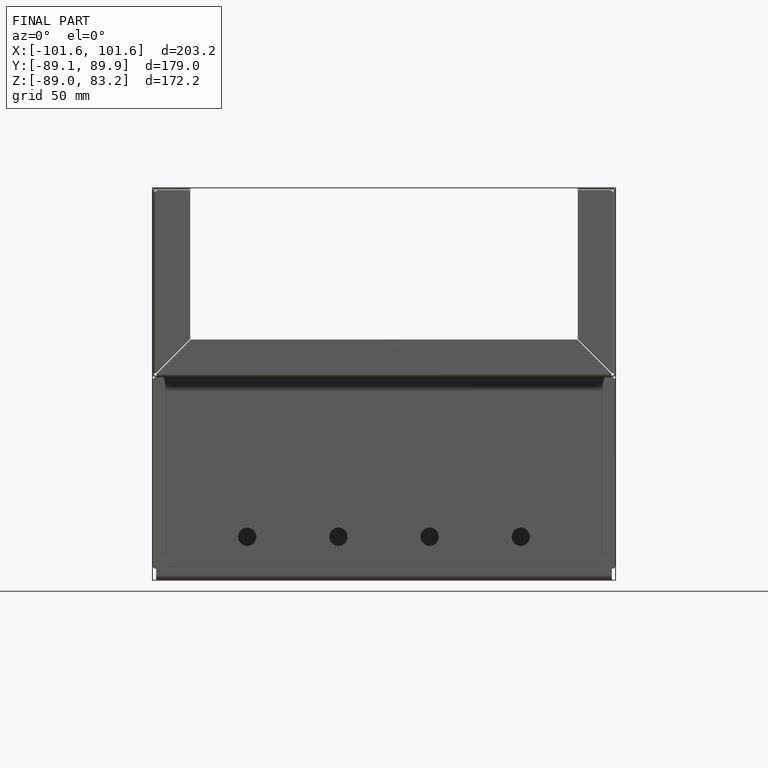
[diagram: finished part — front view with bounding-box wireframe]
